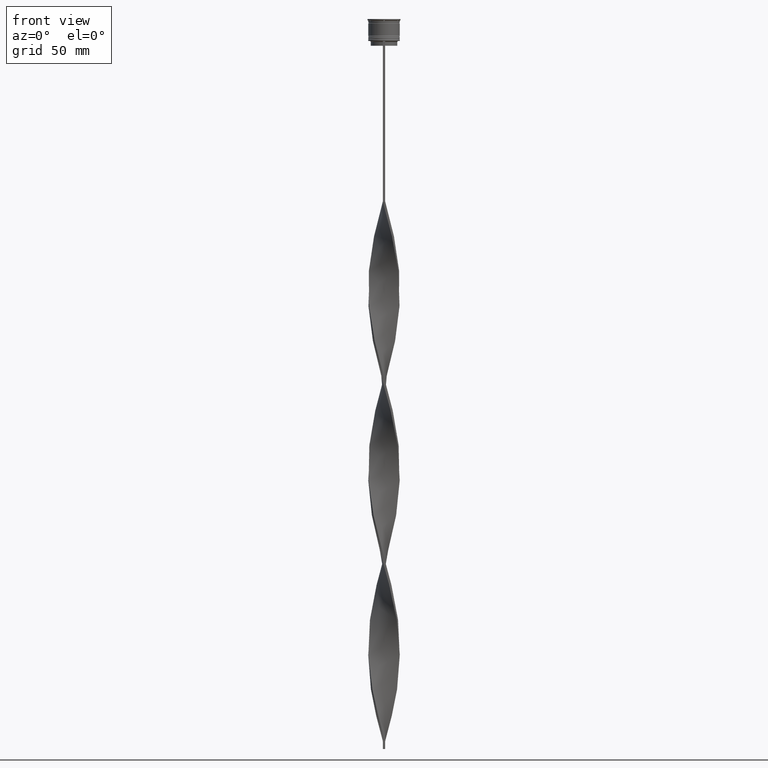
[diagram: clean part render]
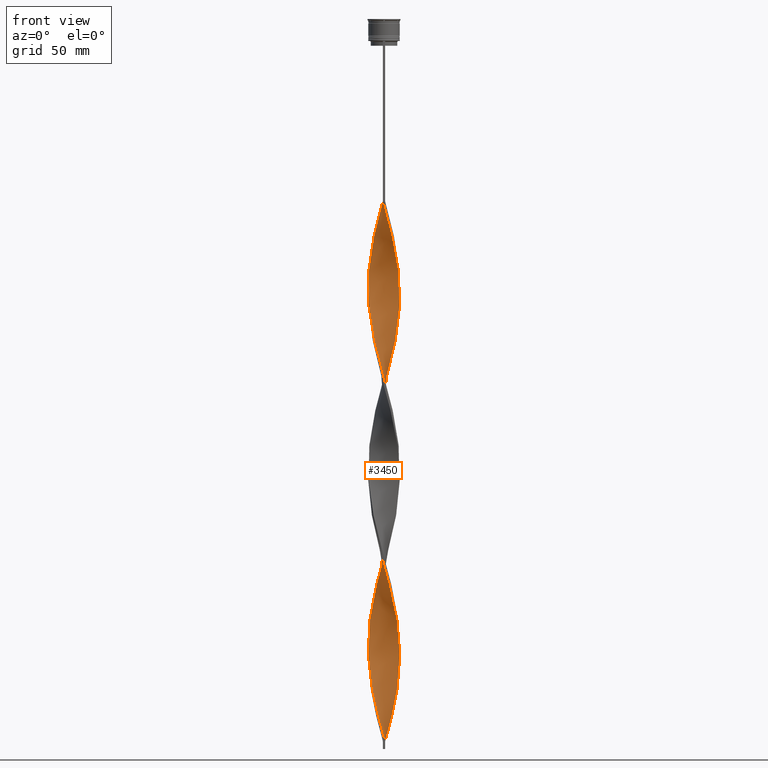
[diagram: same view with one face highlighted and labeled with its STEP entity id]
A machine part, front view. The second image highlights one B-rep face of the part: STEP entity #3450.
In plain terms, the highlighted face is a freeform B-spline surface patch.
Its self-contained STEP definition (entity closure, byte-faithful):
#8 = CARTESIAN_POINT ( 'NONE',  ( 0.7499999999999985567, -9.999999999999998224, -230.3333333333333428 ) ) ;
#14 = CARTESIAN_POINT ( 'NONE',  ( 7.620814860596667906, 6.557445345164573780, -430.4166666666666856 ) ) ;
#27 = CARTESIAN_POINT ( 'NONE',  ( 10.05364105866910052, -0.03478588441203001036, -175.7651515151515014 ) ) ;
#28 = CARTESIAN_POINT ( 'NONE',  ( 3.536945298625166156, -9.383630318513901614, -240.7272727272727479 ) ) ;
#36 = CARTESIAN_POINT ( 'NONE',  ( -9.407881213296606759, -3.471926133502973411, -303.0909090909091219 ) ) ;
#51 = CARTESIAN_POINT ( 'NONE',  ( -7.575255041002665557, -6.610024179840425340, -196.5530303030303116 ) ) ;
#59 = CARTESIAN_POINT ( 'NONE',  ( -2.165514464143553308, -9.791478290104366877, -339.4696969696969973 ) ) ;
#72 = CARTESIAN_POINT ( 'NONE',  ( -9.999999999999998224, -0.7499999999999991118, -173.1666666666666856 ) ) ;
#76 = CARTESIAN_POINT ( 'NONE',  ( -0.6807823013221521169, -10.00495054751428725, -225.1363636363636260 ) ) ;
#87 = CARTESIAN_POINT ( 'NONE',  ( -9.130662998149981391, 4.208075784551214227, -274.5075757575757507 ) ) ;
#97 = CARTESIAN_POINT ( 'NONE',  ( 1.465214115587968324, -9.946358941330901260, -232.9318181818181870 ) ) ;
#99 = CARTESIAN_POINT ( 'NONE',  ( 0.7500000000000009992, 10.00000000000000533, -459.0000000000000000 ) ) ;
#115 = CARTESIAN_POINT ( 'NONE',  ( 0.03478588441202859483, -10.05364105866909341, -227.7348484848484702 ) ) ;
#122 = CARTESIAN_POINT ( 'NONE',  ( 0.6807823013221536712, 10.00495054751428903, -339.4696969696969973 ) ) ;
#127 = CARTESIAN_POINT ( 'NONE',  ( 4.836374126534754403, 8.784758693793774498, -214.7424242424242209 ) ) ;
#129 = CARTESIAN_POINT ( 'NONE',  ( 0.7500000000000011102, 10.00000000000000533, -459.0000000000000000 ) ) ;
#139 = CARTESIAN_POINT ( 'NONE',  ( -5.464672468518295467, 8.438854389437556947, -134.1893939393939377 ) ) ;
#143 = CARTESIAN_POINT ( 'NONE',  ( 9.130662998149976062, 4.208075784551208898, -300.4924242424241925 ) ) ;
#147 = CARTESIAN_POINT ( 'NONE',  ( 10.00495054751429613, 0.6807823013221513397, -178.3636363636364024 ) ) ;
#149 = CARTESIAN_POINT ( 'NONE',  ( 0.7500000000000011102, 10.00000000000000533, -459.0000000000000000 ) ) ;
#155 = CARTESIAN_POINT ( 'NONE',  ( -7.620814860596662577, 6.557445345164569339, -373.2499999999999432 ) ) ;
#157 = CARTESIAN_POINT ( 'NONE',  ( 7.115419520218543070, -7.066350193083619224, -256.3181818181818130 ) ) ;
#162 = CARTESIAN_POINT ( 'NONE',  ( -8.007054715220117913, 6.037348324179363068, -266.7121212121212466 ) ) ;
#171 = CARTESIAN_POINT ( 'NONE',  ( -8.007054715220110808, -6.037348324179360404, -422.6212121212121247 ) ) ;
#174 = CARTESIAN_POINT ( 'NONE',  ( -9.383630318513899837, -3.536945298625169265, -412.2272727272727479 ) ) ;
#180 = CARTESIAN_POINT ( 'NONE',  ( 8.476467727406435060, 5.406144972209746768, -196.5530303030303116 ) ) ;
#196 = CARTESIAN_POINT ( 'NONE',  ( -2.799061189350513512, -9.656198271192605986, -446.0075757575756938 ) ) ;
#199 = CARTESIAN_POINT ( 'NONE',  ( 8.048641294001544821, -5.981795158687156722, -261.5151515151515582 ) ) ;
#206 = CARTESIAN_POINT ( 'NONE',  ( 10.00000000000000533, -0.7500000000000004441, -173.1666666666666856 ) ) ;
#219 = CARTESIAN_POINT ( 'NONE',  ( -4.775468024932591149, -8.818015941403507085, -438.2121212121212466 ) ) ;
#223 = CARTESIAN_POINT ( 'NONE',  ( 7.575255041002672662, -6.610024179840428893, -378.4469696969697452 ) ) ;
#237 = CARTESIAN_POINT ( 'NONE',  ( 0.6807823013221536712, 10.00495054751428903, -339.4696969696969973 ) ) ;
#243 = CARTESIAN_POINT ( 'NONE',  ( -0.7499999999999997780, -10.00000000000000533, -344.6666666666666856 ) ) ;
#246 =( BOUNDED_CURVE ( )  B_SPLINE_CURVE ( 2, ( #1320, #2683, #2146, #2774, #2183, #790, #2484, #139, #3222, #4194, #1169, #4217, #1455, #4237, #3857, #1124, #4150, #766, #3199, #2123, #3904, #3832, #72, #2100, #831, #3520, #1434, #2526, #464, #3163, #1493, #1829, #3494, #445, #1807, #2838, #3564, #488, #2162, #1085, #1473, #3180, #1409, #115, #1148, #97, #2506, #3885, #2861, #2440, #1762, #1849, #810, #3814, #744, #3467, #398, #424, #3540, #1787, #3140, #2816, #2796, #4174, #1104, #2461, #851, #597, #1245, #576, #2965, #3288, #3965, #871, #1228, #2225, #2587, #1951, #2924, #1269, #3652, #1933, #4295, #3605, #2550, #3308, #237, #1209, #1574, #1866, #2607, #1187, #1593, #893, #1513, #938, #2246, #3627, #4342, #155, #551, #2631, #4011, #2296, #1911, #3926, #1884, #2880, #3990, #4273, #2572, #2205, #508, #525, #3672, #3586, #3242, #4253, #171, #915, #3947, #1532, #2901, #3265, #219, #2942, #4315, #196, #1556, #2273, #260, #3400, #2055 ),
 .UNSPECIFIED., .F., .T. ) 
 B_SPLINE_CURVE_WITH_KNOTS ( ( 3, 2, 2, 2, 2, 2, 2, 2, 2, 2, 2, 2, 2, 2, 2, 2, 2, 2, 2, 2, 2, 2, 2, 2, 2, 2, 2, 2, 2, 2, 2, 2, 2, 2, 2, 2, 2, 2, 2, 2, 2, 2, 2, 2, 2, 2, 2, 2, 2, 2, 2, 2, 2, 2, 2, 2, 2, 2, 2, 2, 2, 2, 2, 2, 2, 2, 3 ),
 ( 0.000000000000000000, 0.01136363636363636222, 0.02272727272727272443, 0.03409090909090908839, 0.04545454545454544887, 0.05681818181818181629, 0.06818181818181817677, 0.07954545454545454419, 0.09090909090909089774, 0.1022727272727272790, 0.1136363636363636326, 0.1250000000000000000, 0.1363636363636363535, 0.1477272727272727348, 0.1590909090909090884, 0.1704545454545454419, 0.1818181818181817955, 0.1931818181818182045, 0.2045454545454545581, 0.2159090909090909116, 0.2272727272727272652, 0.2386363636363636465, 0.2500000000000000000, 0.2613636363636363535, 0.2727272727272727071, 0.2840909090909091161, 0.2954545454545454697, 0.3068181818181818232, 0.3181818181818181768, 0.3295454545454545303, 0.3409090909090908839, 0.3522727272727272929, 0.3636363636363635909, 0.3750000000000000000, 0.3863636363636364091, 0.3977272727272727071, 0.4090909090909091161, 0.4204545454545454697, 0.4318181818181818232, 0.4431818181818181768, 0.4545454545454545303, 0.4659090909090908839, 0.4772727272727272929, 0.4886363636363635909, 0.5000000000000000000, 0.5113636363636363535, 0.5227272727272727071, 0.5340909090909090606, 0.5454545454545454142, 0.5568181818181817677, 0.5681818181818182323, 0.5795454545454545858, 0.5909090909090909394, 0.6022727272727272929, 0.6136363636363636465, 0.6250000000000000000, 0.6363636363636363535, 0.6477272727272727071, 0.6590909090909090606, 0.6704545454545454142, 0.6818181818181817677, 0.6931818181818182323, 0.7045454545454545858, 0.7159090909090909394, 0.7272727272727271819, 0.7386363636363636465, 0.7500000000000000000 ),
 .UNSPECIFIED. ) 
 CURVE ( )  GEOMETRIC_REPRESENTATION_ITEM ( )  RATIONAL_B_SPLINE_CURVE ( ( 1.000000000000000000, 0.9974521146102535152, 1.000000000000000000, 0.9974521146102535152, 1.000000000000000000, 0.9974521146102535152, 1.000000000000000000, 0.9974521146102535152, 1.000000000000000000, 0.9974521146102535152, 1.000000000000000000, 0.9974521146102535152, 1.000000000000000000, 0.9974521146102535152, 1.000000000000000000, 0.9974521146102535152, 1.000000000000000000, 0.9974521146102535152, 1.000000000000000000, 0.9974521146102535152, 1.000000000000000000, 0.9974521146102535152, 1.000000000000000000, 0.9974521146102535152, 1.000000000000000000, 0.9974521146102535152, 1.000000000000000000, 0.9974521146102535152, 1.000000000000000000, 0.9974521146102535152, 1.000000000000000000, 0.9974521146102535152, 1.000000000000000000, 0.9974521146102535152, 1.000000000000000000, 0.9974521146102535152, 1.000000000000000000, 0.9974521146102535152, 1.000000000000000000, 0.9974521146102535152, 1.000000000000000000, 0.9974521146102535152, 1.000000000000000000, 0.9974521146102535152, 1.000000000000000000, 0.9974521146102535152, 1.000000000000000000, 0.9974521146102535152, 1.000000000000000000, 0.9974521146102535152, 1.000000000000000000, 0.9974521146102535152, 1.000000000000000000, 0.9974521146102535152, 1.000000000000000000, 0.9974521146102535152, 1.000000000000000000, 0.9974521146102535152, 1.000000000000000000, 0.9974521146102535152, 1.000000000000000000, 0.9974521146102535152, 1.000000000000000000, 0.9974521146102535152, 1.000000000000000000, 0.9974521146102535152, 1.000000000000000000, 0.9974521146102535152, 1.000000000000000000, 0.9974521146102535152, 1.000000000000000000, 0.9974521146102535152, 1.000000000000000000, 0.9974521146102535152, 1.000000000000000000, 0.9974521146102535152, 1.000000000000000000, 0.9974521146102535152, 1.000000000000000000, 0.9974521146102535152, 1.000000000000000000, 0.9974521146102535152, 1.000000000000000000, 0.9974521146102535152, 1.000000000000000000, 0.9974521146102535152, 1.000000000000000000, 0.9974521146102535152, 1.000000000000000000, 0.9974521146102535152, 1.000000000000000000, 0.9974521146102535152, 1.000000000000000000, 0.9974521146102535152, 1.000000000000000000, 0.9974521146102535152, 1.000000000000000000, 0.9974521146102535152, 1.000000000000000000, 0.9974521146102535152, 1.000000000000000000, 0.9974521146102535152, 1.000000000000000000, 0.9974521146102535152, 1.000000000000000000, 0.9974521146102535152, 1.000000000000000000, 0.9974521146102535152, 1.000000000000000000, 0.9974521146102535152, 1.000000000000000000, 0.9974521146102535152, 1.000000000000000000, 0.9974521146102535152, 1.000000000000000000, 0.9974521146102535152, 1.000000000000000000, 0.9974521146102535152, 1.000000000000000000, 0.9974521146102535152, 1.000000000000000000, 0.9974521146102535152, 1.000000000000000000, 0.9974521146102535152, 1.000000000000000000, 0.9974521146102535152, 1.000000000000000000, 0.9974521146102535152, 1.000000000000000000, 0.9974521146102535152, 1.000000000000000000, 0.9974521146102535152, 1.000000000000000000 ) ) 
 REPRESENTATION_ITEM ( '' )  );
#250 = VECTOR ( 'NONE', #555, 1000.000000000000000 ) ;
#260 = CARTESIAN_POINT ( 'NONE',  ( -0.6807823013221521169, -10.00495054751428725, -453.8030303030303116 ) ) ;
#268 = CARTESIAN_POINT ( 'NONE',  ( -8.784758693793774498, 4.836374126534755291, -271.9090909090909349 ) ) ;
#291 = CARTESIAN_POINT ( 'NONE',  ( -9.383630318513906943, 3.536945298625171930, -277.1060606060606233 ) ) ;
#309 = CARTESIAN_POINT ( 'NONE',  ( -9.791478290104366877, 2.165514464143551976, -282.3030303030303116 ) ) ;
#317 = CARTESIAN_POINT ( 'NONE',  ( 9.383630318513906943, -3.536945298625172374, -391.4393939393939945 ) ) ;
#332 = CARTESIAN_POINT ( 'NONE',  ( -9.791478290104363325, -2.165514464143549311, -178.3636363636364024 ) ) ;
#341 = CARTESIAN_POINT ( 'NONE',  ( 9.806229153776049756, 2.097705838203425266, -412.2272727272727479 ) ) ;
#350 = CARTESIAN_POINT ( 'NONE',  ( 5.981795158687160274, -8.048641294001550150, -141.9848484848484986 ) ) ;
#357 = CARTESIAN_POINT ( 'NONE',  ( -9.407881213296597878, 3.471926133502974743, -157.5757575757575921 ) ) ;
#366 = CARTESIAN_POINT ( 'NONE',  ( 5.981795158687160274, -8.048641294001550150, -370.6515151515151842 ) ) ;
#379 = CARTESIAN_POINT ( 'NONE',  ( -3.536945298625169265, 9.383630318513899837, -126.3939393939393909 ) ) ;
#387 = CARTESIAN_POINT ( 'NONE',  ( -9.956260036359488197, -1.396350487056335687, -295.2954545454545041 ) ) ;
#398 = CARTESIAN_POINT ( 'NONE',  ( 8.048641294001544821, -5.981795158687156722, -261.5151515151515582 ) ) ;
#401 = CARTESIAN_POINT ( 'NONE',  ( -7.066350193083618336, -7.115419520218543070, -199.1515151515151558 ) ) ;
#410 = CARTESIAN_POINT ( 'NONE',  ( 8.438854389437562276, -5.464672468518299908, -383.6439393939393767 ) ) ;
#424 = CARTESIAN_POINT ( 'NONE',  ( 8.476467727406427954, -5.406144972209744104, -264.1136363636363171 ) ) ;
#428 = CARTESIAN_POINT ( 'NONE',  ( -9.130662998149976062, -4.208075784551208010, -186.1590909090908781 ) ) ;
#442 = CARTESIAN_POINT ( 'NONE',  ( 8.438854389437562276, -5.464672468518299908, -154.9772727272727195 ) ) ;
#445 = CARTESIAN_POINT ( 'NONE',  ( -6.557445345164569339, -7.620814860596661688, -201.7499999999999716 ) ) ;
#449 = CARTESIAN_POINT ( 'NONE',  ( -5.464672468518295467, 8.438854389437556947, -362.8560606060606233 ) ) ;
#464 = CARTESIAN_POINT ( 'NONE',  ( -8.784758693793767392, -4.836374126534751738, -188.7575757575757507 ) ) ;
#471 = CARTESIAN_POINT ( 'NONE',  ( -9.407881213296597878, 3.471926133502974743, -386.2424242424242493 ) ) ;
#478 = CARTESIAN_POINT ( 'NONE',  ( 5.406144972209745880, -8.476467727406435060, -139.3863636363635976 ) ) ;
#488 = CARTESIAN_POINT ( 'NONE',  ( -4.144791077655437306, -9.159564155400586216, -212.1439393939393767 ) ) ;
#494 = CARTESIAN_POINT ( 'NONE',  ( 8.818015941403510638, -4.775468024932587596, -266.7121212121212466 ) ) ;
#497 = CARTESIAN_POINT ( 'NONE',  ( -5.981795158687159386, 8.048641294001550150, -256.3181818181818130 ) ) ;
#505 = CARTESIAN_POINT ( 'NONE',  ( -9.791478290104366877, 2.165514464143552420, -282.3030303030303116 ) ) ;
#508 = CARTESIAN_POINT ( 'NONE',  ( -9.791478290104363325, -2.165514464143549311, -407.0303030303030027 ) ) ;
#510 = CARTESIAN_POINT ( 'NONE',  ( -9.999999999999998224, -0.7499999999999991118, -401.8333333333333144 ) ) ;
#514 = CARTESIAN_POINT ( 'NONE',  ( 8.007054715220117913, -6.037348324179365733, -152.3787878787879038 ) ) ;
#522 = CARTESIAN_POINT ( 'NONE',  ( -2.097705838203422601, 9.806229153776051533, -240.7272727272727479 ) ) ;
#525 = CARTESIAN_POINT ( 'NONE',  ( -9.636597638877821836, -2.865814812699130520, -409.6287878787878185 ) ) ;
#529 = CARTESIAN_POINT ( 'NONE',  ( 8.007054715220116137, 6.037348324179355963, -308.2878787878788103 ) ) ;
#532 =( BOUNDED_SURFACE ( )  B_SPLINE_SURFACE ( 1, 2, ( 
 ( #3913, #4259, #3632, #1518, #4301, #3611, #1481, #1561, #858, #478, #1893, #3936, #901, #560, #514, #2868, #1540, #1234, #3229, #3971, #879, #2534, #206, #2851, #147, #3249, #2930, #3270, #2255, #3893, #2887, #180, #2212, #2908, #3188, #4242, #838, #1838, #127, #4228, #2190, #2556, #1158, #2515, #819, #2594, #2170, #3573, #4282, #3211, #1218, #3550, #1501, #3591, #497, #1855, #2576, #3955, #162, #3749, #268, #1673, #291, #1959, #309, #3002, #1632, #3294, #1277, #3727, #2637, #4421, #1301, #4348, #579, #2615, #1347, #4375, #1938, #3047, #998, #3676, #653, #4017, #3315, #3995, #2712, #2659, #243, #4090, #2354, #605, #2011, #3385, #947, #970, #4039, #3366, #1022, #2374, #2687, #223, #1987, #1920, #3339, #2327, #1580, #2948, #3701, #631, #4323, #1253, #2303, #1652, #3024, #923, #4397, #2280, #1323, #4063, #3658, #1604, #2975, #4155, #1389, #3144, #2734, #3451, #1044, #1367, #748, #3816, #99 ),
 ( #1743, #2754, #3117, #1129, #379, #1792, #4177, #3407, #3501, #2779, #2397, #1107, #1413, #2818, #2487, #2444, #357, #3471, #3166, #728, #1458, #2799, #3093, #2127, #332, #2062, #2103, #428, #2467, #4200, #4110, #51, #401, #1087, #1766, #675, #1721, #4132, #3773, #2036, #1700, #1068, #76, #3073, #8, #702, #3838, #772, #28, #1436, #3429, #2422, #3798, #2083, #157, #793, #199, #3224, #494, #2573, #1231, #2185, #3606, #2209, #3908, #2226, #1850, #3568, #2148, #3205, #1214, #143, #1889, #1515, #529, #835, #1559, #1536, #1834, #874, #3525, #815, #2552, #3266, #2902, #2926, #122, #2884, #3930, #4256, #3587, #4299, #3545, #1497, #1152, #449, #1811, #2864, #1191, #3183, #1477, #2844, #3949, #3863, #471, #855, #2510, #1868, #4222, #3889, #510, #2165, #4240, #3245, #174, #1173, #2531, #4277, #2350, #966, #2633, #991, #3673, #941, #3966, #1935, #4394, #3311, #649, #1956, #577, #1247, #3291 ) ),
 .UNSPECIFIED., .F., .F., .F. ) 
 B_SPLINE_SURFACE_WITH_KNOTS ( ( 2, 2 ),
 ( 3, 2, 2, 2, 2, 2, 2, 2, 2, 2, 2, 2, 2, 2, 2, 2, 2, 2, 2, 2, 2, 2, 2, 2, 2, 2, 2, 2, 2, 2, 2, 2, 2, 2, 2, 2, 2, 2, 2, 2, 2, 2, 2, 2, 2, 2, 2, 2, 2, 2, 2, 2, 2, 2, 2, 2, 2, 2, 2, 2, 2, 2, 2, 2, 2, 2, 3 ),
 ( 0.000000000000000000, 1.000000000000000000 ),
 ( 0.000000000000000000, 0.01136363636363636395, 0.02272727272727272790, 0.03409090909090908839, 0.04545454545454545581, 0.05681818181818181629, 0.06818181818181817677, 0.07954545454545454419, 0.09090909090909091161, 0.1022727272727272790, 0.1136363636363636326, 0.1250000000000000000, 0.1363636363636363535, 0.1477272727272727348, 0.1590909090909090884, 0.1704545454545454419, 0.1818181818181818232, 0.1931818181818181768, 0.2045454545454545581, 0.2159090909090909116, 0.2272727272727272652, 0.2386363636363636465, 0.2500000000000000000, 0.2613636363636363535, 0.2727272727272727071, 0.2840909090909091161, 0.2954545454545454697, 0.3068181818181818232, 0.3181818181818181768, 0.3295454545454545303, 0.3409090909090908839, 0.3522727272727272929, 0.3636363636363636465, 0.3750000000000000000, 0.3863636363636363535, 0.3977272727272727071, 0.4090909090909091161, 0.4204545454545454697, 0.4318181818181818232, 0.4431818181818181768, 0.4545454545454545303, 0.4659090909090908839, 0.4772727272727272929, 0.4886363636363636465, 0.5000000000000000000, 0.5113636363636363535, 0.5227272727272727071, 0.5340909090909090606, 0.5454545454545454142, 0.5568181818181817677, 0.5681818181818182323, 0.5795454545454545858, 0.5909090909090909394, 0.6022727272727272929, 0.6136363636363636465, 0.6250000000000000000, 0.6363636363636363535, 0.6477272727272727071, 0.6590909090909090606, 0.6704545454545454142, 0.6818181818181817677, 0.6931818181818182323, 0.7045454545454545858, 0.7159090909090909394, 0.7272727272727272929, 0.7386363636363636465, 0.7500000000000000000 ),
 .UNSPECIFIED. ) 
 GEOMETRIC_REPRESENTATION_ITEM ( )  RATIONAL_B_SPLINE_SURFACE ( (
 ( 1.000000000000000000, 0.9974521146102535152, 1.000000000000000000, 0.9974521146102535152, 1.000000000000000000, 0.9974521146102535152, 1.000000000000000000, 0.9974521146102535152, 1.000000000000000000, 0.9974521146102535152, 1.000000000000000000, 0.9974521146102535152, 1.000000000000000000, 0.9974521146102535152, 1.000000000000000000, 0.9974521146102535152, 1.000000000000000000, 0.9974521146102535152, 1.000000000000000000, 0.9974521146102535152, 1.000000000000000000, 0.9974521146102535152, 1.000000000000000000, 0.9974521146102535152, 1.000000000000000000, 0.9974521146102535152, 1.000000000000000000, 0.9974521146102535152, 1.000000000000000000, 0.9974521146102535152, 1.000000000000000000, 0.9974521146102535152, 1.000000000000000000, 0.9974521146102535152, 1.000000000000000000, 0.9974521146102535152, 1.000000000000000000, 0.9974521146102535152, 1.000000000000000000, 0.9974521146102535152, 1.000000000000000000, 0.9974521146102535152, 1.000000000000000000, 0.9974521146102535152, 1.000000000000000000, 0.9974521146102535152, 1.000000000000000000, 0.9974521146102535152, 1.000000000000000000, 0.9974521146102535152, 1.000000000000000000, 0.9974521146102535152, 1.000000000000000000, 0.9974521146102535152, 1.000000000000000000, 0.9974521146102535152, 1.000000000000000000, 0.9974521146102535152, 1.000000000000000000, 0.9974521146102535152, 1.000000000000000000, 0.9974521146102535152, 1.000000000000000000, 0.9974521146102535152, 1.000000000000000000, 0.9974521146102535152, 1.000000000000000000, 0.9974521146102535152, 1.000000000000000000, 0.9974521146102535152, 1.000000000000000000, 0.9974521146102535152, 1.000000000000000000, 0.9974521146102535152, 1.000000000000000000, 0.9974521146102535152, 1.000000000000000000, 0.9974521146102535152, 1.000000000000000000, 0.9974521146102535152, 1.000000000000000000, 0.9974521146102535152, 1.000000000000000000, 0.9974521146102535152, 1.000000000000000000, 0.9974521146102535152, 1.000000000000000000, 0.9974521146102535152, 1.000000000000000000, 0.9974521146102535152, 1.000000000000000000, 0.9974521146102535152, 1.000000000000000000, 0.9974521146102535152, 1.000000000000000000, 0.9974521146102535152, 1.000000000000000000, 0.9974521146102535152, 1.000000000000000000, 0.9974521146102535152, 1.000000000000000000, 0.9974521146102535152, 1.000000000000000000, 0.9974521146102535152, 1.000000000000000000, 0.9974521146102535152, 1.000000000000000000, 0.9974521146102535152, 1.000000000000000000, 0.9974521146102535152, 1.000000000000000000, 0.9974521146102535152, 1.000000000000000000, 0.9974521146102535152, 1.000000000000000000, 0.9974521146102535152, 1.000000000000000000, 0.9974521146102535152, 1.000000000000000000, 0.9974521146102535152, 1.000000000000000000, 0.9974521146102535152, 1.000000000000000000, 0.9974521146102535152, 1.000000000000000000, 0.9974521146102535152, 1.000000000000000000, 0.9974521146102535152, 1.000000000000000000, 0.9974521146102535152, 1.000000000000000000, 0.9974521146102535152, 1.000000000000000000),
 ( 1.000000000000000000, 0.9974521146102535152, 1.000000000000000000, 0.9974521146102535152, 1.000000000000000000, 0.9974521146102535152, 1.000000000000000000, 0.9974521146102535152, 1.000000000000000000, 0.9974521146102535152, 1.000000000000000000, 0.9974521146102535152, 1.000000000000000000, 0.9974521146102535152, 1.000000000000000000, 0.9974521146102535152, 1.000000000000000000, 0.9974521146102535152, 1.000000000000000000, 0.9974521146102535152, 1.000000000000000000, 0.9974521146102535152, 1.000000000000000000, 0.9974521146102535152, 1.000000000000000000, 0.9974521146102535152, 1.000000000000000000, 0.9974521146102535152, 1.000000000000000000, 0.9974521146102535152, 1.000000000000000000, 0.9974521146102535152, 1.000000000000000000, 0.9974521146102535152, 1.000000000000000000, 0.9974521146102535152, 1.000000000000000000, 0.9974521146102535152, 1.000000000000000000, 0.9974521146102535152, 1.000000000000000000, 0.9974521146102535152, 1.000000000000000000, 0.9974521146102535152, 1.000000000000000000, 0.9974521146102535152, 1.000000000000000000, 0.9974521146102535152, 1.000000000000000000, 0.9974521146102535152, 1.000000000000000000, 0.9974521146102535152, 1.000000000000000000, 0.9974521146102535152, 1.000000000000000000, 0.9974521146102535152, 1.000000000000000000, 0.9974521146102535152, 1.000000000000000000, 0.9974521146102535152, 1.000000000000000000, 0.9974521146102535152, 1.000000000000000000, 0.9974521146102535152, 1.000000000000000000, 0.9974521146102535152, 1.000000000000000000, 0.9974521146102535152, 1.000000000000000000, 0.9974521146102535152, 1.000000000000000000, 0.9974521146102535152, 1.000000000000000000, 0.9974521146102535152, 1.000000000000000000, 0.9974521146102535152, 1.000000000000000000, 0.9974521146102535152, 1.000000000000000000, 0.9974521146102535152, 1.000000000000000000, 0.9974521146102535152, 1.000000000000000000, 0.9974521146102535152, 1.000000000000000000, 0.9974521146102535152, 1.000000000000000000, 0.9974521146102535152, 1.000000000000000000, 0.9974521146102535152, 1.000000000000000000, 0.9974521146102535152, 1.000000000000000000, 0.9974521146102535152, 1.000000000000000000, 0.9974521146102535152, 1.000000000000000000, 0.9974521146102535152, 1.000000000000000000, 0.9974521146102535152, 1.000000000000000000, 0.9974521146102535152, 1.000000000000000000, 0.9974521146102535152, 1.000000000000000000, 0.9974521146102535152, 1.000000000000000000, 0.9974521146102535152, 1.000000000000000000, 0.9974521146102535152, 1.000000000000000000, 0.9974521146102535152, 1.000000000000000000, 0.9974521146102535152, 1.000000000000000000, 0.9974521146102535152, 1.000000000000000000, 0.9974521146102535152, 1.000000000000000000, 0.9974521146102535152, 1.000000000000000000, 0.9974521146102535152, 1.000000000000000000, 0.9974521146102535152, 1.000000000000000000, 0.9974521146102535152, 1.000000000000000000, 0.9974521146102535152, 1.000000000000000000, 0.9974521146102535152, 1.000000000000000000, 0.9974521146102535152, 1.000000000000000000) ) ) 
 REPRESENTATION_ITEM ( '' )  SURFACE ( )  );
#551 = CARTESIAN_POINT ( 'NONE',  ( -8.048641294001546598, 5.981795158687156722, -375.8484848484848726 ) ) ;
#555 = DIRECTION ( 'NONE',  ( 0.000000000000000000, 1.000000000000000000, 0.000000000000000000 ) ) ;
#560 = CARTESIAN_POINT ( 'NONE',  ( 7.575255041002672662, -6.610024179840428893, -149.7803030303030596 ) ) ;
#576 = CARTESIAN_POINT ( 'NONE',  ( 9.636597638877821836, 2.865814812699131409, -295.2954545454545041 ) ) ;
#577 = CARTESIAN_POINT ( 'NONE',  ( -0.6807823013221521169, -10.00495054751428725, -453.8030303030303116 ) ) ;
#579 = CARTESIAN_POINT ( 'NONE',  ( -8.818015941403515967, -4.775468024932588484, -308.2878787878788103 ) ) ;
#597 = CARTESIAN_POINT ( 'NONE',  ( 9.946358941330901260, 1.465214115587971877, -290.0984848484848726 ) ) ;
#605 = CARTESIAN_POINT ( 'NONE',  ( 1.396350487056334799, -9.956260036359488197, -352.4621212121211329 ) ) ;
#611 = CARTESIAN_POINT ( 'NONE',  ( 9.791478290104368654, -2.165514464143551088, -167.9696969696969973 ) ) ;
#631 = CARTESIAN_POINT ( 'NONE',  ( 9.946358941330910142, -1.465214115587970545, -399.2348484848484418 ) ) ;
#649 = CARTESIAN_POINT ( 'NONE',  ( -2.097705838203423490, -9.806229153776044427, -448.6060606060606233 ) ) ;
#653 = CARTESIAN_POINT ( 'NONE',  ( -4.836374126534756179, -8.784758693793772721, -329.0757575757575637 ) ) ;
#662 = CARTESIAN_POINT ( 'NONE',  ( -4.208075784551214227, -9.130662998149981391, -331.6742424242423795 ) ) ;
#675 = CARTESIAN_POINT ( 'NONE',  ( -5.406144972209744104, -8.476467727406427954, -206.9469696969697168 ) ) ;
#682 = CARTESIAN_POINT ( 'NONE',  ( 7.575255041002671774, -6.610024179840428005, -378.4469696969697452 ) ) ;
#702 = CARTESIAN_POINT ( 'NONE',  ( 1.465214115587968324, -9.946358941330903036, -232.9318181818181870 ) ) ;
#712 = CARTESIAN_POINT ( 'NONE',  ( 5.406144972209745880, -8.476467727406435060, -368.0530303030302548 ) ) ;
#728 = CARTESIAN_POINT ( 'NONE',  ( -9.956260036359481091, 1.396350487056332357, -165.3712121212120962 ) ) ;
#736 = CARTESIAN_POINT ( 'NONE',  ( 9.946358941330908365, -1.465214115587970767, -399.2348484848484418 ) ) ;
#744 = CARTESIAN_POINT ( 'NONE',  ( 7.115419520218543070, -7.066350193083619224, -256.3181818181818130 ) ) ;
#748 = CARTESIAN_POINT ( 'NONE',  ( 2.165514464143551976, 9.791478290104368654, -453.8030303030303116 ) ) ;
#755 = CARTESIAN_POINT ( 'NONE',  ( 6.557445345164574668, -7.620814860596667906, -373.2499999999999432 ) ) ;
#766 = CARTESIAN_POINT ( 'NONE',  ( -9.656198271192604210, 2.799061189350515289, -160.1742424242424363 ) ) ;
#772 = CARTESIAN_POINT ( 'NONE',  ( 2.865814812699127856, -9.636597638877821836, -238.1287878787878469 ) ) ;
#790 = CARTESIAN_POINT ( 'NONE',  ( -4.208075784551208010, 9.130662998149976062, -128.9924242424242209 ) ) ;
#793 = CARTESIAN_POINT ( 'NONE',  ( 7.620814860596662577, -6.557445345164570227, -258.9166666666666288 ) ) ;
#810 = CARTESIAN_POINT ( 'NONE',  ( 6.037348324179360404, -8.007054715220112584, -251.1212121212121247 ) ) ;
#815 = CARTESIAN_POINT ( 'NONE',  ( 4.144791077655439970, 9.159564155400586216, -326.4772727272727479 ) ) ;
#819 = CARTESIAN_POINT ( 'NONE',  ( 0.7500000000000009992, 10.00000000000000533, -230.3333333333333428 ) ) ;
#831 = CARTESIAN_POINT ( 'NONE',  ( -9.791478290104363325, -2.165514464143549311, -178.3636363636364024 ) ) ;
#833 = CARTESIAN_POINT ( 'NONE',  ( 5.406144972209745880, -8.476467727406435060, -139.3863636363636260 ) ) ;
#835 = CARTESIAN_POINT ( 'NONE',  ( 7.575255041002667333, 6.610024179840423564, -310.8863636363635692 ) ) ;
#838 = CARTESIAN_POINT ( 'NONE',  ( 6.037348324179366621, 8.007054715220117913, -209.5454545454545610 ) ) ;
#851 = CARTESIAN_POINT ( 'NONE',  ( 9.999999999999998224, 0.7499999999999980016, -287.5000000000000568 ) ) ;
#852 = VERTEX_POINT ( 'NONE', #2195 ) ;
#855 = CARTESIAN_POINT ( 'NONE',  ( -9.656198271192604210, 2.799061189350515289, -388.8409090909090651 ) ) ;
#858 = CARTESIAN_POINT ( 'NONE',  ( 4.775468024932592925, -8.818015941403515967, -136.7878787878787818 ) ) ;
#871 = CARTESIAN_POINT ( 'NONE',  ( 8.438854389437556947, 5.464672468518295467, -305.6893939393939945 ) ) ;
#872 = CARTESIAN_POINT ( 'NONE',  ( 9.806229153776049756, 2.097705838203425266, -183.5606060606060908 ) ) ;
#874 = CARTESIAN_POINT ( 'NONE',  ( 5.406144972209744992, 8.476467727406426178, -321.2803030303030596 ) ) ;
#879 = CARTESIAN_POINT ( 'NONE',  ( 9.791478290104368654, -2.165514464143551088, -167.9696969696969973 ) ) ;
#893 = CARTESIAN_POINT ( 'NONE',  ( -4.208075784551208010, 9.130662998149976062, -357.6590909090909349 ) ) ;
#901 = CARTESIAN_POINT ( 'NONE',  ( 7.066350193083622777, -7.115419520218548399, -147.1818181818181870 ) ) ;
#915 = CARTESIAN_POINT ( 'NONE',  ( -7.575255041002665557, -6.610024179840424452, -425.2196969696969404 ) ) ;
#923 = CARTESIAN_POINT ( 'NONE',  ( 9.656198271192611315, 2.799061189350516621, -414.8257575757575637 ) ) ;
#938 = CARTESIAN_POINT ( 'NONE',  ( -5.464672468518295467, 8.438854389437556947, -362.8560606060606233 ) ) ;
#941 = CARTESIAN_POINT ( 'NONE',  ( -5.406144972209744104, -8.476467727406427954, -435.6136363636363171 ) ) ;
#947 = CARTESIAN_POINT ( 'NONE',  ( 3.471926133502977407, -9.407881213296604983, -360.2575757575757507 ) ) ;
#966 = CARTESIAN_POINT ( 'NONE',  ( -7.575255041002665557, -6.610024179840425340, -425.2196969696969404 ) ) ;
#968 = CARTESIAN_POINT ( 'NONE',  ( -4.775468024932592925, 8.818015941403515967, -251.1212121212121247 ) ) ;
#970 = CARTESIAN_POINT ( 'NONE',  ( 4.144791077655439082, -9.159564155400593322, -362.8560606060606233 ) ) ;
#991 = CARTESIAN_POINT ( 'NONE',  ( -6.557445345164569339, -7.620814860596662577, -430.4166666666666856 ) ) ;
#998 = CARTESIAN_POINT ( 'NONE',  ( -6.037348324179363068, -8.007054715220117913, -323.8787878787878753 ) ) ;
#1007 = CARTESIAN_POINT ( 'NONE',  ( 8.476467727406435060, 5.406144972209746768, -425.2196969696969404 ) ) ;
#1022 = CARTESIAN_POINT ( 'NONE',  ( 5.981795158687160274, -8.048641294001550150, -370.6515151515151842 ) ) ;
#1028 = CARTESIAN_POINT ( 'NONE',  ( 10.00000000000000533, -0.7500000000000005551, -401.8333333333333144 ) ) ;
#1044 = CARTESIAN_POINT ( 'NONE',  ( 3.536945298625171041, 9.383630318513906943, -448.6060606060606233 ) ) ;
#1054 = CARTESIAN_POINT ( 'NONE',  ( 3.536945298625171041, 9.383630318513906943, -448.6060606060606233 ) ) ;
#1068 = CARTESIAN_POINT ( 'NONE',  ( -1.396350487056332801, -9.956260036359481091, -222.5378787878787250 ) ) ;
#1077 = CARTESIAN_POINT ( 'NONE',  ( 4.208075784551209786, 9.130662998149983167, -446.0075757575756938 ) ) ;
#1085 = CARTESIAN_POINT ( 'NONE',  ( -2.799061189350513512, -9.656198271192605986, -217.3409090909090651 ) ) ;
#1087 = CARTESIAN_POINT ( 'NONE',  ( -6.557445345164569339, -7.620814860596662577, -201.7500000000000000 ) ) ;
#1095 = CARTESIAN_POINT ( 'NONE',  ( -8.476467727406435060, -5.406144972209744992, -310.8863636363635692 ) ) ;
#1104 = CARTESIAN_POINT ( 'NONE',  ( 10.00495054751428903, -0.6807823013221527830, -282.3030303030303116 ) ) ;
#1107 = CARTESIAN_POINT ( 'NONE',  ( -7.620814860596663465, 6.557445345164569339, -144.5833333333333428 ) ) ;
#1124 = CARTESIAN_POINT ( 'NONE',  ( -9.159564155400587993, 4.144791077655436418, -154.9772727272727195 ) ) ;
#1129 = CARTESIAN_POINT ( 'NONE',  ( -2.865814812699130076, 9.636597638877821836, -123.7954545454545325 ) ) ;
#1148 = CARTESIAN_POINT ( 'NONE',  ( 0.7499999999999985567, -9.999999999999998224, -230.3333333333333428 ) ) ;
#1152 = CARTESIAN_POINT ( 'NONE',  ( -4.836374126534752627, 8.784758693793767392, -360.2575757575757507 ) ) ;
#1153 = CARTESIAN_POINT ( 'NONE',  ( 1.465214115587971433, 9.946358941330908365, -227.7348484848484702 ) ) ;
#1158 = CARTESIAN_POINT ( 'NONE',  ( 2.165514464143551976, 9.791478290104368654, -225.1363636363636260 ) ) ;
#1169 = CARTESIAN_POINT ( 'NONE',  ( -7.115419520218543070, 7.066350193083617448, -141.9848484848484986 ) ) ;
#1173 = CARTESIAN_POINT ( 'NONE',  ( -9.130662998149976062, -4.208075784551208010, -414.8257575757575637 ) ) ;
#1175 =( BOUNDED_CURVE ( )  B_SPLINE_CURVE ( 2, ( #1630, #3000, #4373, #1299, #3725, #2658, #2326, #1984, #1791, #833, #350, #2509, #3887, #2004, #3198, #442, #3903, #2120, #2041, #3663, #611, #1983, #3023, #27, #2010, #3653, #872, #2159, #2202, #3582, #1509, #2877, #2222, #1243, #2169, #1837, #4215, #3884, #1375, #4164, #2478, #1505, #1522, #1153, #2266, #1968, #3642, #4333, #522, #2395, #2019, #1251, #968, #1295, #3247, #2904, #3951, #3208, #1825, #3874, #1919, #87, #2792, #1292, #505, #2724, #2463, #2719, #2070, #387, #1373, #2741, #36, #2404, #1683, #1095, #2787, #3734, #4162, #2452, #1400, #2045, #3780, #662, #2361, #2022, #59, #1422, #2382, #2764, #3057, #3806, #3394, #3824, #3438, #2695, #2112, #712, #366, #755, #3153, #682, #3481, #410, #3129, #1729, #317, #3080, #1333, #736, #1028, #3756, #4429, #1355, #341, #1776, #4097, #3414, #4074, #1007, #2431, #14, #1710, #1753, #4118, #3101, #4139, #1077, #1054, #2090, #3458, #1444, #149 ),
 .UNSPECIFIED., .F., .T. ) 
 B_SPLINE_CURVE_WITH_KNOTS ( ( 3, 2, 2, 2, 2, 2, 2, 2, 2, 2, 2, 2, 2, 2, 2, 2, 2, 2, 2, 2, 2, 2, 2, 2, 2, 2, 2, 2, 2, 2, 2, 2, 2, 2, 2, 2, 2, 2, 2, 2, 2, 2, 2, 2, 2, 2, 2, 2, 2, 2, 2, 2, 2, 2, 2, 2, 2, 2, 2, 2, 2, 2, 2, 2, 2, 2, 3 ),
 ( 0.000000000000000000, 0.01136363636363636222, 0.02272727272727272443, 0.03409090909090908839, 0.04545454545454544887, 0.05681818181818181629, 0.06818181818181817677, 0.07954545454545454419, 0.09090909090909089774, 0.1022727272727272790, 0.1136363636363636326, 0.1250000000000000000, 0.1363636363636363535, 0.1477272727272727348, 0.1590909090909090884, 0.1704545454545454419, 0.1818181818181817955, 0.1931818181818182045, 0.2045454545454545581, 0.2159090909090909116, 0.2272727272727272652, 0.2386363636363636465, 0.2500000000000000000, 0.2613636363636363535, 0.2727272727272727071, 0.2840909090909091161, 0.2954545454545454697, 0.3068181818181818232, 0.3181818181818181768, 0.3295454545454545303, 0.3409090909090908839, 0.3522727272727272929, 0.3636363636363635909, 0.3750000000000000000, 0.3863636363636364091, 0.3977272727272727071, 0.4090909090909091161, 0.4204545454545454697, 0.4318181818181818232, 0.4431818181818181768, 0.4545454545454545303, 0.4659090909090908839, 0.4772727272727272929, 0.4886363636363635909, 0.5000000000000000000, 0.5113636363636363535, 0.5227272727272727071, 0.5340909090909090606, 0.5454545454545454142, 0.5568181818181817677, 0.5681818181818182323, 0.5795454545454545858, 0.5909090909090909394, 0.6022727272727272929, 0.6136363636363636465, 0.6250000000000000000, 0.6363636363636363535, 0.6477272727272727071, 0.6590909090909090606, 0.6704545454545454142, 0.6818181818181817677, 0.6931818181818182323, 0.7045454545454545858, 0.7159090909090909394, 0.7272727272727271819, 0.7386363636363636465, 0.7500000000000000000 ),
 .UNSPECIFIED. ) 
 CURVE ( )  GEOMETRIC_REPRESENTATION_ITEM ( )  RATIONAL_B_SPLINE_CURVE ( ( 1.000000000000000000, 0.9974521146102535152, 1.000000000000000000, 0.9974521146102535152, 1.000000000000000000, 0.9974521146102535152, 1.000000000000000000, 0.9974521146102535152, 1.000000000000000000, 0.9974521146102535152, 1.000000000000000000, 0.9974521146102535152, 1.000000000000000000, 0.9974521146102535152, 1.000000000000000000, 0.9974521146102535152, 1.000000000000000000, 0.9974521146102535152, 1.000000000000000000, 0.9974521146102535152, 1.000000000000000000, 0.9974521146102535152, 1.000000000000000000, 0.9974521146102535152, 1.000000000000000000, 0.9974521146102535152, 1.000000000000000000, 0.9974521146102535152, 1.000000000000000000, 0.9974521146102535152, 1.000000000000000000, 0.9974521146102535152, 1.000000000000000000, 0.9974521146102535152, 1.000000000000000000, 0.9974521146102535152, 1.000000000000000000, 0.9974521146102535152, 1.000000000000000000, 0.9974521146102535152, 1.000000000000000000, 0.9974521146102535152, 1.000000000000000000, 0.9974521146102535152, 1.000000000000000000, 0.9974521146102535152, 1.000000000000000000, 0.9974521146102535152, 1.000000000000000000, 0.9974521146102535152, 1.000000000000000000, 0.9974521146102535152, 1.000000000000000000, 0.9974521146102535152, 1.000000000000000000, 0.9974521146102535152, 1.000000000000000000, 0.9974521146102535152, 1.000000000000000000, 0.9974521146102535152, 1.000000000000000000, 0.9974521146102535152, 1.000000000000000000, 0.9974521146102535152, 1.000000000000000000, 0.9974521146102535152, 1.000000000000000000, 0.9974521146102535152, 1.000000000000000000, 0.9974521146102535152, 1.000000000000000000, 0.9974521146102535152, 1.000000000000000000, 0.9974521146102535152, 1.000000000000000000, 0.9974521146102535152, 1.000000000000000000, 0.9974521146102535152, 1.000000000000000000, 0.9974521146102535152, 1.000000000000000000, 0.9974521146102535152, 1.000000000000000000, 0.9974521146102535152, 1.000000000000000000, 0.9974521146102535152, 1.000000000000000000, 0.9974521146102535152, 1.000000000000000000, 0.9974521146102535152, 1.000000000000000000, 0.9974521146102535152, 1.000000000000000000, 0.9974521146102535152, 1.000000000000000000, 0.9974521146102535152, 1.000000000000000000, 0.9974521146102535152, 1.000000000000000000, 0.9974521146102535152, 1.000000000000000000, 0.9974521146102535152, 1.000000000000000000, 0.9974521146102535152, 1.000000000000000000, 0.9974521146102535152, 1.000000000000000000, 0.9974521146102535152, 1.000000000000000000, 0.9974521146102535152, 1.000000000000000000, 0.9974521146102535152, 1.000000000000000000, 0.9974521146102535152, 1.000000000000000000, 0.9974521146102535152, 1.000000000000000000, 0.9974521146102535152, 1.000000000000000000, 0.9974521146102535152, 1.000000000000000000, 0.9974521146102535152, 1.000000000000000000, 0.9974521146102535152, 1.000000000000000000, 0.9974521146102535152, 1.000000000000000000, 0.9974521146102535152, 1.000000000000000000, 0.9974521146102535152, 1.000000000000000000, 0.9974521146102535152, 1.000000000000000000 ) ) 
 REPRESENTATION_ITEM ( '' )  );
#1187 = CARTESIAN_POINT ( 'NONE',  ( -2.865814812699130076, 9.636597638877821836, -352.4621212121211897 ) ) ;
#1191 = CARTESIAN_POINT ( 'NONE',  ( -7.115419520218543070, 7.066350193083617448, -370.6515151515151842 ) ) ;
#1195 = FACE_OUTER_BOUND ( 'NONE', #1475, .T. ) ;
#1209 = CARTESIAN_POINT ( 'NONE',  ( -0.03478588441203184223, 10.05364105866909341, -342.0681818181818130 ) ) ;
#1214 = CARTESIAN_POINT ( 'NONE',  ( 9.383630318513901614, 3.536945298625165712, -297.8939393939394336 ) ) ;
#1218 = CARTESIAN_POINT ( 'NONE',  ( -3.471926133502978296, 9.407881213296603207, -245.9242424242424363 ) ) ;
#1228 = CARTESIAN_POINT ( 'NONE',  ( 8.007054715220116137, 6.037348324179355963, -308.2878787878788103 ) ) ;
#1231 = CARTESIAN_POINT ( 'NONE',  ( 9.407881213296597878, -3.471926133502974743, -271.9090909090909349 ) ) ;
#1234 = CARTESIAN_POINT ( 'NONE',  ( 9.130662998149983167, -4.208075784551211562, -160.1742424242424647 ) ) ;
#1243 = CARTESIAN_POINT ( 'NONE',  ( 7.620814860596667906, 6.557445345164573780, -201.7499999999999716 ) ) ;
#1245 = CARTESIAN_POINT ( 'NONE',  ( 9.791478290104363325, 2.165514464143547535, -292.6969696969697452 ) ) ;
#1247 = CARTESIAN_POINT ( 'NONE',  ( 0.03478588441202860176, -10.05364105866909341, -456.4015151515151274 ) ) ;
#1251 = CARTESIAN_POINT ( 'NONE',  ( -4.144791077655439082, 9.159564155400593322, -248.5227272727272521 ) ) ;
#1253 = CARTESIAN_POINT ( 'NONE',  ( 10.05364105866910052, -0.03478588441202989240, -404.4318181818180733 ) ) ;
#1269 = CARTESIAN_POINT ( 'NONE',  ( 5.406144972209744992, 8.476467727406426178, -321.2803030303030027 ) ) ;
#1277 = CARTESIAN_POINT ( 'NONE',  ( -10.00495054751429613, -0.6807823013221501185, -292.6969696969697452 ) ) ;
#1292 = CARTESIAN_POINT ( 'NONE',  ( -9.636597638877828942, 2.865814812699136738, -279.7045454545454390 ) ) ;
#1295 = CARTESIAN_POINT ( 'NONE',  ( -5.406144972209745880, 8.476467727406435060, -253.7196969696969973 ) ) ;
#1299 = CARTESIAN_POINT ( 'NONE',  ( 1.396350487056334577, -9.956260036359488197, -123.7954545454545467 ) ) ;
#1301 = CARTESIAN_POINT ( 'NONE',  ( -9.407881213296606759, -3.471926133502973411, -303.0909090909091219 ) ) ;
#1320 = CARTESIAN_POINT ( 'NONE',  ( -0.7499999999999997780, 9.999999999999998224, -116.0000000000000000 ) ) ;
#1323 = CARTESIAN_POINT ( 'NONE',  ( 8.818015941403514191, 4.775468024932592925, -422.6212121212121247 ) ) ;
#1333 = CARTESIAN_POINT ( 'NONE',  ( 9.791478290104368654, -2.165514464143551088, -396.6363636363636260 ) ) ;
#1347 = CARTESIAN_POINT ( 'NONE',  ( -8.048641294001550150, -5.981795158687162051, -313.4848484848484986 ) ) ;
#1355 = CARTESIAN_POINT ( 'NONE',  ( 9.956260036359488197, 1.396350487056335021, -409.6287878787878185 ) ) ;
#1367 = CARTESIAN_POINT ( 'NONE',  ( 2.865814812699131853, 9.636597638877828942, -451.2045454545454959 ) ) ;
#1373 = CARTESIAN_POINT ( 'NONE',  ( -9.806229153776051533, -2.097705838203422157, -297.8939393939394336 ) ) ;
#1375 = CARTESIAN_POINT ( 'NONE',  ( 4.836374126534754403, 8.784758693793774498, -214.7424242424242209 ) ) ;
#1389 = CARTESIAN_POINT ( 'NONE',  ( 6.037348324179366621, 8.007054715220117913, -438.2121212121212466 ) ) ;
#1400 = CARTESIAN_POINT ( 'NONE',  ( -6.037348324179363068, -8.007054715220117913, -323.8787878787878753 ) ) ;
#1409 = CARTESIAN_POINT ( 'NONE',  ( -0.6807823013221521169, -10.00495054751428725, -225.1363636363636260 ) ) ;
#1413 = CARTESIAN_POINT ( 'NONE',  ( -8.048641294001546598, 5.981795158687156722, -147.1818181818181870 ) ) ;
#1422 = CARTESIAN_POINT ( 'NONE',  ( -1.465214115587968102, -9.946358941330908365, -342.0681818181818130 ) ) ;
#1434 = CARTESIAN_POINT ( 'NONE',  ( -9.383630318513899837, -3.536945298625169265, -183.5606060606060908 ) ) ;
#1436 = CARTESIAN_POINT ( 'NONE',  ( 4.208075784551209786, -9.130662998149976062, -243.3257575757575637 ) ) ;
#1444 = CARTESIAN_POINT ( 'NONE',  ( 1.465214115587971433, 9.946358941330908365, -456.4015151515151274 ) ) ;
#1455 = CARTESIAN_POINT ( 'NONE',  ( -8.048641294001546598, 5.981795158687156722, -147.1818181818181870 ) ) ;
#1458 = CARTESIAN_POINT ( 'NONE',  ( -10.00495054751428725, 0.6807823013221516728, -167.9696969696969973 ) ) ;
#1473 = CARTESIAN_POINT ( 'NONE',  ( -2.097705838203423490, -9.806229153776044427, -219.9393939393939377 ) ) ;
#1475 = EDGE_LOOP ( 'NONE', ( #3363, #2443, #3332, #2050 ) ) ;
#1477 = CARTESIAN_POINT ( 'NONE',  ( -8.048641294001546598, 5.981795158687156722, -375.8484848484848726 ) ) ;
#1481 = CARTESIAN_POINT ( 'NONE',  ( 3.471926133502977407, -9.407881213296604983, -131.5909090909090935 ) ) ;
#1493 = CARTESIAN_POINT ( 'NONE',  ( -8.007054715220110808, -6.037348324179360404, -193.9545454545454675 ) ) ;
#1497 = CARTESIAN_POINT ( 'NONE',  ( -4.208075784551208898, 9.130662998149976062, -357.6590909090909918 ) ) ;
#1501 = CARTESIAN_POINT ( 'NONE',  ( -4.775468024932592925, 8.818015941403515967, -251.1212121212121247 ) ) ;
#1505 = CARTESIAN_POINT ( 'NONE',  ( 2.865814812699131853, 9.636597638877828942, -222.5378787878787534 ) ) ;
#1509 = CARTESIAN_POINT ( 'NONE',  ( 8.818015941403514191, 4.775468024932592925, -193.9545454545454675 ) ) ;
#1513 = CARTESIAN_POINT ( 'NONE',  ( -4.836374126534752627, 8.784758693793767392, -360.2575757575757507 ) ) ;
#1515 = CARTESIAN_POINT ( 'NONE',  ( 8.438854389437556947, 5.464672468518295467, -305.6893939393939945 ) ) ;
#1518 = CARTESIAN_POINT ( 'NONE',  ( 1.396350487056334799, -9.956260036359488197, -123.7954545454545325 ) ) ;
#1520 = CARTESIAN_POINT ( 'NONE',  ( 0.7500000000000002220, 3.333333333333337478, -459.0000000000000000 ) ) ;
#1522 = CARTESIAN_POINT ( 'NONE',  ( 2.165514464143551976, 9.791478290104366877, -225.1363636363636260 ) ) ;
#1532 = CARTESIAN_POINT ( 'NONE',  ( -6.557445345164569339, -7.620814860596661688, -430.4166666666666856 ) ) ;
#1536 = CARTESIAN_POINT ( 'NONE',  ( 6.557445345164570227, 7.620814860596661688, -316.0833333333332575 ) ) ;
#1540 = CARTESIAN_POINT ( 'NONE',  ( 8.784758693793772721, -4.836374126534756179, -157.5757575757575921 ) ) ;
#1556 = CARTESIAN_POINT ( 'NONE',  ( -2.097705838203423490, -9.806229153776044427, -448.6060606060606233 ) ) ;
#1559 = CARTESIAN_POINT ( 'NONE',  ( 7.066350193083616560, 7.115419520218544847, -313.4848484848484986 ) ) ;
#1561 = CARTESIAN_POINT ( 'NONE',  ( 4.144791077655439082, -9.159564155400593322, -134.1893939393939661 ) ) ;
#1574 = CARTESIAN_POINT ( 'NONE',  ( -0.7499999999999997780, 9.999999999999998224, -344.6666666666666856 ) ) ;
#1580 = CARTESIAN_POINT ( 'NONE',  ( 9.383630318513906943, -3.536945298625171930, -391.4393939393939945 ) ) ;
#1593 = CARTESIAN_POINT ( 'NONE',  ( -3.536945298625169265, 9.383630318513899837, -355.0606060606060623 ) ) ;
#1604 = CARTESIAN_POINT ( 'NONE',  ( 7.620814860596668794, 6.557445345164573780, -430.4166666666666856 ) ) ;
#1630 = CARTESIAN_POINT ( 'NONE',  ( -0.7499999999999998890, -10.00000000000000533, -116.0000000000000000 ) ) ;
#1632 = CARTESIAN_POINT ( 'NONE',  ( -10.00000000000000533, 0.7500000000000016653, -287.5000000000000568 ) ) ;
#1652 = CARTESIAN_POINT ( 'NONE',  ( 9.956260036359488197, 1.396350487056335243, -409.6287878787878185 ) ) ;
#1673 = CARTESIAN_POINT ( 'NONE',  ( -9.130662998149981391, 4.208075784551215115, -274.5075757575757507 ) ) ;
#1683 = CARTESIAN_POINT ( 'NONE',  ( -8.818015941403515967, -4.775468024932588484, -308.2878787878788103 ) ) ;
#1700 = CARTESIAN_POINT ( 'NONE',  ( -2.097705838203423490, -9.806229153776044427, -219.9393939393939377 ) ) ;
#1710 = CARTESIAN_POINT ( 'NONE',  ( 7.115419520218548399, 7.066350193083621889, -433.0151515151515014 ) ) ;
#1720 = EDGE_CURVE ( 'NONE', #4152, #852, #1175, .T. ) ;
#1721 = CARTESIAN_POINT ( 'NONE',  ( -4.775468024932591149, -8.818015941403507085, -209.5454545454545610 ) ) ;
#1729 = CARTESIAN_POINT ( 'NONE',  ( 9.130662998149981391, -4.208075784551211562, -388.8409090909090651 ) ) ;
#1743 = CARTESIAN_POINT ( 'NONE',  ( -0.7499999999999997780, 9.999999999999998224, -116.0000000000000000 ) ) ;
#1753 = CARTESIAN_POINT ( 'NONE',  ( 6.610024179840429781, 7.575255041002669998, -435.6136363636363171 ) ) ;
#1762 = CARTESIAN_POINT ( 'NONE',  ( 4.836374126534753515, -8.784758693793767392, -245.9242424242424363 ) ) ;
#1766 = CARTESIAN_POINT ( 'NONE',  ( -5.981795158687156722, -8.048641294001544821, -204.3484848484848726 ) ) ;
#1776 = CARTESIAN_POINT ( 'NONE',  ( 9.656198271192611315, 2.799061189350516621, -414.8257575757575637 ) ) ;
#1787 = CARTESIAN_POINT ( 'NONE',  ( 9.159564155400586216, -4.144791077655439082, -269.3106060606060623 ) ) ;
#1791 = CARTESIAN_POINT ( 'NONE',  ( 4.775468024932592925, -8.818015941403515967, -136.7878787878787818 ) ) ;
#1792 = CARTESIAN_POINT ( 'NONE',  ( -4.208075784551208898, 9.130662998149976062, -128.9924242424241925 ) ) ;
#1807 = CARTESIAN_POINT ( 'NONE',  ( -5.981795158687156722, -8.048641294001544821, -204.3484848484848726 ) ) ;
#1811 = CARTESIAN_POINT ( 'NONE',  ( -6.037348324179360404, 8.007054715220112584, -365.4545454545454959 ) ) ;
#1825 = CARTESIAN_POINT ( 'NONE',  ( -8.007054715220117913, 6.037348324179363068, -266.7121212121212466 ) ) ;
#1829 = CARTESIAN_POINT ( 'NONE',  ( -7.575255041002665557, -6.610024179840424452, -196.5530303030303116 ) ) ;
#1834 = CARTESIAN_POINT ( 'NONE',  ( 5.981795158687153169, 8.048641294001546598, -318.6818181818181870 ) ) ;
#1837 = CARTESIAN_POINT ( 'NONE',  ( 6.610024179840429781, 7.575255041002669998, -206.9469696969697168 ) ) ;
#1838 = CARTESIAN_POINT ( 'NONE',  ( 5.464672468518301685, 8.438854389437560499, -212.1439393939393767 ) ) ;
#1840 = CARTESIAN_POINT ( 'NONE',  ( 0.7499999999999994449, -3.333333333333330373, -459.0000000000000000 ) ) ;
#1849 = CARTESIAN_POINT ( 'NONE',  ( 5.464672468518296355, -8.438854389437556947, -248.5227272727272521 ) ) ;
#1850 = CARTESIAN_POINT ( 'NONE',  ( 9.999999999999998224, 0.7499999999999980016, -287.5000000000000568 ) ) ;
#1855 = CARTESIAN_POINT ( 'NONE',  ( -6.557445345164573780, 7.620814860596669682, -258.9166666666666288 ) ) ;
#1866 = CARTESIAN_POINT ( 'NONE',  ( -1.465214115587969879, 9.946358941330901260, -347.2651515151514445 ) ) ;
#1868 = CARTESIAN_POINT ( 'NONE',  ( -9.956260036359481091, 1.396350487056332357, -394.0378787878788103 ) ) ;
#1871 = EDGE_CURVE ( 'NONE', #852, #2527, #3899, .T. ) ;
#1884 = CARTESIAN_POINT ( 'NONE',  ( -9.806229153776044427, 2.097705838203424378, -391.4393939393939945 ) ) ;
#1889 = CARTESIAN_POINT ( 'NONE',  ( 8.784758693793769169, 4.836374126534749074, -303.0909090909091219 ) ) ;
#1893 = CARTESIAN_POINT ( 'NONE',  ( 5.981795158687160274, -8.048641294001550150, -141.9848484848484986 ) ) ;
#1911 = CARTESIAN_POINT ( 'NONE',  ( -9.407881213296597878, 3.471926133502974743, -386.2424242424242493 ) ) ;
#1919 = CARTESIAN_POINT ( 'NONE',  ( -8.784758693793774498, 4.836374126534755291, -271.9090909090909349 ) ) ;
#1920 = CARTESIAN_POINT ( 'NONE',  ( 8.438854389437562276, -5.464672468518299908, -383.6439393939393767 ) ) ;
#1933 = CARTESIAN_POINT ( 'NONE',  ( 4.144791077655439082, 9.159564155400586216, -326.4772727272727479 ) ) ;
#1935 = CARTESIAN_POINT ( 'NONE',  ( -4.144791077655438194, -9.159564155400586216, -440.8106060606060055 ) ) ;
#1938 = CARTESIAN_POINT ( 'NONE',  ( -7.115419520218546623, -7.066350193083624553, -318.6818181818181870 ) ) ;
#1951 = CARTESIAN_POINT ( 'NONE',  ( 6.557445345164570227, 7.620814860596660800, -316.0833333333332575 ) ) ;
#1956 = CARTESIAN_POINT ( 'NONE',  ( -1.396350487056332801, -9.956260036359481091, -451.2045454545454959 ) ) ;
#1959 = CARTESIAN_POINT ( 'NONE',  ( -9.636597638877828942, 2.865814812699136738, -279.7045454545453822 ) ) ;
#1968 = CARTESIAN_POINT ( 'NONE',  ( 0.03478588441203076670, 10.05364105866910052, -232.9318181818181870 ) ) ;
#1983 = CARTESIAN_POINT ( 'NONE',  ( 9.946358941330908365, -1.465214115587970767, -170.5681818181818414 ) ) ;
#1984 = CARTESIAN_POINT ( 'NONE',  ( 4.144791077655438194, -9.159564155400593322, -134.1893939393939377 ) ) ;
#1987 = CARTESIAN_POINT ( 'NONE',  ( 8.007054715220117913, -6.037348324179365733, -381.0454545454545610 ) ) ;
#2004 = CARTESIAN_POINT ( 'NONE',  ( 7.575255041002671774, -6.610024179840428005, -149.7803030303030312 ) ) ;
#2010 = CARTESIAN_POINT ( 'NONE',  ( 10.00495054751429613, 0.6807823013221512287, -178.3636363636364024 ) ) ;
#2011 = CARTESIAN_POINT ( 'NONE',  ( 2.097705838203425266, -9.806229153776049756, -355.0606060606060623 ) ) ;
#2019 = CARTESIAN_POINT ( 'NONE',  ( -3.471926133502978296, 9.407881213296603207, -245.9242424242424363 ) ) ;
#2022 = CARTESIAN_POINT ( 'NONE',  ( -2.865814812699137182, -9.636597638877828942, -336.8712121212120678 ) ) ;
#2036 = CARTESIAN_POINT ( 'NONE',  ( -2.799061189350513512, -9.656198271192605986, -217.3409090909090651 ) ) ;
#2041 = CARTESIAN_POINT ( 'NONE',  ( 9.383630318513906943, -3.536945298625172374, -162.7727272727272805 ) ) ;
#2045 = CARTESIAN_POINT ( 'NONE',  ( -5.464672468518302573, -8.438854389437560499, -326.4772727272727479 ) ) ;
#2050 = ORIENTED_EDGE ( 'NONE', *, *, #1720, .F. ) ;
#2055 = CARTESIAN_POINT ( 'NONE',  ( 0.7499999999999985567, -9.999999999999998224, -459.0000000000000000 ) ) ;
#2062 = CARTESIAN_POINT ( 'NONE',  ( -9.636597638877821836, -2.865814812699130520, -180.9621212121212182 ) ) ;
#2070 = CARTESIAN_POINT ( 'NONE',  ( -10.00495054751429613, -0.6807823013221500075, -292.6969696969697452 ) ) ;
#2076 = EDGE_CURVE ( 'NONE', #2621, #2527, #246, .T. ) ;
#2083 = CARTESIAN_POINT ( 'NONE',  ( 6.610024179840423564, -7.575255041002665557, -253.7196969696969973 ) ) ;
#2090 = CARTESIAN_POINT ( 'NONE',  ( 2.865814812699131853, 9.636597638877828942, -451.2045454545454959 ) ) ;
#2100 = CARTESIAN_POINT ( 'NONE',  ( -9.946358941330901260, -1.465214115587968990, -175.7651515151515014 ) ) ;
#2103 = CARTESIAN_POINT ( 'NONE',  ( -9.383630318513899837, -3.536945298625169265, -183.5606060606060908 ) ) ;
#2112 = CARTESIAN_POINT ( 'NONE',  ( 4.775468024932592925, -8.818015941403515967, -365.4545454545454959 ) ) ;
#2120 = CARTESIAN_POINT ( 'NONE',  ( 9.130662998149981391, -4.208075784551211562, -160.1742424242424363 ) ) ;
#2123 = CARTESIAN_POINT ( 'NONE',  ( -9.956260036359481091, 1.396350487056332579, -165.3712121212121247 ) ) ;
#2127 = CARTESIAN_POINT ( 'NONE',  ( -9.946358941330903036, -1.465214115587968990, -175.7651515151515014 ) ) ;
#2146 = CARTESIAN_POINT ( 'NONE',  ( -2.165514464143550200, 9.791478290104361548, -121.1969696969697026 ) ) ;
#2148 = CARTESIAN_POINT ( 'NONE',  ( 9.791478290104363325, 2.165514464143547535, -292.6969696969697452 ) ) ;
#2159 = CARTESIAN_POINT ( 'NONE',  ( 9.656198271192611315, 2.799061189350516621, -186.1590909090908781 ) ) ;
#2162 = CARTESIAN_POINT ( 'NONE',  ( -3.471926133502973855, -9.407881213296597878, -214.7424242424242209 ) ) ;
#2165 = CARTESIAN_POINT ( 'NONE',  ( -9.946358941330903036, -1.465214115587968990, -404.4318181818180733 ) ) ;
#2169 = CARTESIAN_POINT ( 'NONE',  ( 7.115419520218548399, 7.066350193083621889, -204.3484848484848726 ) ) ;
#2170 = CARTESIAN_POINT ( 'NONE',  ( -0.6807823013221504516, 10.00495054751429613, -235.5303030303030312 ) ) ;
#2183 = CARTESIAN_POINT ( 'NONE',  ( -3.536945298625169265, 9.383630318513899837, -126.3939393939393909 ) ) ;
#2185 = CARTESIAN_POINT ( 'NONE',  ( 9.656198271192604210, -2.799061189350518397, -274.5075757575757507 ) ) ;
#2190 = CARTESIAN_POINT ( 'NONE',  ( 3.536945298625171041, 9.383630318513906943, -219.9393939393939377 ) ) ;
#2195 = CARTESIAN_POINT ( 'NONE',  ( 0.7500000000000011102, 10.00000000000000533, -459.0000000000000000 ) ) ;
#2202 = CARTESIAN_POINT ( 'NONE',  ( 9.407881213296604983, 3.471926133502976075, -188.7575757575757507 ) ) ;
#2205 = CARTESIAN_POINT ( 'NONE',  ( -9.946358941330901260, -1.465214115587968990, -404.4318181818181301 ) ) ;
#2209 = CARTESIAN_POINT ( 'NONE',  ( 9.956260036359481091, -1.396350487056338352, -279.7045454545453822 ) ) ;
#2212 = CARTESIAN_POINT ( 'NONE',  ( 8.048641294001550150, 5.981795158687160274, -199.1515151515151558 ) ) ;
#2222 = CARTESIAN_POINT ( 'NONE',  ( 8.048641294001550150, 5.981795158687159386, -199.1515151515151558 ) ) ;
#2225 = CARTESIAN_POINT ( 'NONE',  ( 7.575255041002667333, 6.610024179840422676, -310.8863636363635692 ) ) ;
#2226 = CARTESIAN_POINT ( 'NONE',  ( 10.05364105866909341, 0.03478588441203249448, -284.9015151515151842 ) ) ;
#2246 = CARTESIAN_POINT ( 'NONE',  ( -6.037348324179360404, 8.007054715220112584, -365.4545454545454959 ) ) ;
#2255 = CARTESIAN_POINT ( 'NONE',  ( 9.407881213296604983, 3.471926133502976519, -188.7575757575757507 ) ) ;
#2266 = CARTESIAN_POINT ( 'NONE',  ( 0.7500000000000011102, 10.00000000000000533, -230.3333333333333428 ) ) ;
#2273 = CARTESIAN_POINT ( 'NONE',  ( -1.396350487056333023, -9.956260036359481091, -451.2045454545454959 ) ) ;
#2280 = CARTESIAN_POINT ( 'NONE',  ( 9.159564155400593322, 4.144791077655439970, -420.0227272727271952 ) ) ;
#2296 = CARTESIAN_POINT ( 'NONE',  ( -9.159564155400587993, 4.144791077655436418, -383.6439393939393767 ) ) ;
#2303 = CARTESIAN_POINT ( 'NONE',  ( 10.00495054751429613, 0.6807823013221513397, -407.0303030303030027 ) ) ;
#2326 = CARTESIAN_POINT ( 'NONE',  ( 3.471926133502976963, -9.407881213296604983, -131.5909090909090935 ) ) ;
#2327 = CARTESIAN_POINT ( 'NONE',  ( 9.130662998149983167, -4.208075784551211562, -388.8409090909090651 ) ) ;
#2350 = CARTESIAN_POINT ( 'NONE',  ( -8.007054715220110808, -6.037348324179360404, -422.6212121212121247 ) ) ;
#2354 = CARTESIAN_POINT ( 'NONE',  ( 0.6807823013221530051, -10.00495054751429436, -349.8636363636363740 ) ) ;
#2361 = CARTESIAN_POINT ( 'NONE',  ( -3.536945298625172374, -9.383630318513906943, -334.2727272727272521 ) ) ;
#2374 = CARTESIAN_POINT ( 'NONE',  ( 6.557445345164574668, -7.620814860596668794, -373.2499999999999432 ) ) ;
#2382 = CARTESIAN_POINT ( 'NONE',  ( -0.7499999999999998890, -10.00000000000000533, -344.6666666666666856 ) ) ;
#2395 = CARTESIAN_POINT ( 'NONE',  ( -2.799061189350517509, 9.656198271192611315, -243.3257575757575637 ) ) ;
#2397 = CARTESIAN_POINT ( 'NONE',  ( -7.115419520218543070, 7.066350193083617448, -141.9848484848484986 ) ) ;
#2404 = CARTESIAN_POINT ( 'NONE',  ( -9.159564155400593322, -4.144791077655438194, -305.6893939393939945 ) ) ;
#2422 = CARTESIAN_POINT ( 'NONE',  ( 5.464672468518296355, -8.438854389437556947, -248.5227272727272521 ) ) ;
#2431 = CARTESIAN_POINT ( 'NONE',  ( 8.048641294001550150, 5.981795158687159386, -427.8181818181818130 ) ) ;
#2440 = CARTESIAN_POINT ( 'NONE',  ( 4.208075784551208898, -9.130662998149976062, -243.3257575757575637 ) ) ;
#2443 = ORIENTED_EDGE ( 'NONE', *, *, #2076, .T. ) ;
#2444 = CARTESIAN_POINT ( 'NONE',  ( -9.159564155400587993, 4.144791077655436418, -154.9772727272727195 ) ) ;
#2452 = CARTESIAN_POINT ( 'NONE',  ( -6.610024179840430669, -7.575255041002668221, -321.2803030303030027 ) ) ;
#2461 = CARTESIAN_POINT ( 'NONE',  ( 10.05364105866909341, 0.03478588441203249448, -284.9015151515151842 ) ) ;
#2463 = CARTESIAN_POINT ( 'NONE',  ( -10.00000000000000533, 0.7500000000000017764, -287.5000000000000568 ) ) ;
#2467 = CARTESIAN_POINT ( 'NONE',  ( -8.784758693793767392, -4.836374126534751738, -188.7575757575757507 ) ) ;
#2478 = CARTESIAN_POINT ( 'NONE',  ( 3.536945298625171041, 9.383630318513906943, -219.9393939393939377 ) ) ;
#2484 = CARTESIAN_POINT ( 'NONE',  ( -4.836374126534752627, 8.784758693793767392, -131.5909090909090935 ) ) ;
#2487 = CARTESIAN_POINT ( 'NONE',  ( -8.818015941403507085, 4.775468024932590261, -152.3787878787879038 ) ) ;
#2506 = CARTESIAN_POINT ( 'NONE',  ( 2.165514464143548423, -9.791478290104363325, -235.5303030303030312 ) ) ;
#2509 = CARTESIAN_POINT ( 'NONE',  ( 6.557445345164574668, -7.620814860596667906, -144.5833333333333428 ) ) ;
#2510 = CARTESIAN_POINT ( 'NONE',  ( -9.806229153776044427, 2.097705838203424378, -391.4393939393939945 ) ) ;
#2515 = CARTESIAN_POINT ( 'NONE',  ( 1.465214115587970989, 9.946358941330910142, -227.7348484848484702 ) ) ;
#2526 = CARTESIAN_POINT ( 'NONE',  ( -9.130662998149976062, -4.208075784551207121, -186.1590909090908781 ) ) ;
#2527 = VERTEX_POINT ( 'NONE', #2959 ) ;
#2531 = CARTESIAN_POINT ( 'NONE',  ( -8.784758693793767392, -4.836374126534751738, -417.4242424242424363 ) ) ;
#2534 = CARTESIAN_POINT ( 'NONE',  ( 9.946358941330910142, -1.465214115587970545, -170.5681818181818414 ) ) ;
#2550 = CARTESIAN_POINT ( 'NONE',  ( 2.097705838203424378, 9.806229153776044427, -334.2727272727272521 ) ) ;
#2552 = CARTESIAN_POINT ( 'NONE',  ( 3.471926133502974743, 9.407881213296597878, -329.0757575757575637 ) ) ;
#2556 = CARTESIAN_POINT ( 'NONE',  ( 2.865814812699131853, 9.636597638877828942, -222.5378787878787250 ) ) ;
#2572 = CARTESIAN_POINT ( 'NONE',  ( -9.999999999999998224, -0.7499999999999991118, -401.8333333333333144 ) ) ;
#2573 = CARTESIAN_POINT ( 'NONE',  ( 9.159564155400586216, -4.144791077655439970, -269.3106060606060623 ) ) ;
#2576 = CARTESIAN_POINT ( 'NONE',  ( -7.066350193083621889, 7.115419520218548399, -261.5151515151515582 ) ) ;
#2587 = CARTESIAN_POINT ( 'NONE',  ( 7.066350193083616560, 7.115419520218544847, -313.4848484848484986 ) ) ;
#2594 = CARTESIAN_POINT ( 'NONE',  ( 0.03478588441203066262, 10.05364105866910052, -232.9318181818181870 ) ) ;
#2607 = CARTESIAN_POINT ( 'NONE',  ( -2.165514464143550200, 9.791478290104361548, -349.8636363636363740 ) ) ;
#2611 = CARTESIAN_POINT ( 'NONE',  ( -0.7499999999999997780, -10.00000000000000533, -116.0000000000000000 ) ) ;
#2615 = CARTESIAN_POINT ( 'NONE',  ( -8.476467727406435060, -5.406144972209745880, -310.8863636363635692 ) ) ;
#2621 = VERTEX_POINT ( 'NONE', #3581 ) ;
#2631 = CARTESIAN_POINT ( 'NONE',  ( -8.476467727406427954, 5.406144972209743216, -378.4469696969697452 ) ) ;
#2633 = CARTESIAN_POINT ( 'NONE',  ( -7.066350193083618336, -7.115419520218543070, -427.8181818181818130 ) ) ;
#2637 = CARTESIAN_POINT ( 'NONE',  ( -9.806229153776051533, -2.097705838203422157, -297.8939393939394336 ) ) ;
#2658 = CARTESIAN_POINT ( 'NONE',  ( 2.799061189350517065, -9.656198271192611315, -128.9924242424242209 ) ) ;
#2659 = CARTESIAN_POINT ( 'NONE',  ( -1.465214115587968102, -9.946358941330910142, -342.0681818181818699 ) ) ;
#2683 = CARTESIAN_POINT ( 'NONE',  ( -1.465214115587969879, 9.946358941330901260, -118.5984848484848442 ) ) ;
#2687 = CARTESIAN_POINT ( 'NONE',  ( 7.066350193083622777, -7.115419520218548399, -375.8484848484848726 ) ) ;
#2695 = CARTESIAN_POINT ( 'NONE',  ( 4.144791077655438194, -9.159564155400593322, -362.8560606060606233 ) ) ;
#2712 = CARTESIAN_POINT ( 'NONE',  ( -2.165514464143552864, -9.791478290104366877, -339.4696969696969973 ) ) ;
#2719 = CARTESIAN_POINT ( 'NONE',  ( -10.05364105866910052, 0.03478588441202685316, -290.0984848484848726 ) ) ;
#2724 = CARTESIAN_POINT ( 'NONE',  ( -9.946358941330908365, 1.465214115587967436, -284.9015151515151842 ) ) ;
#2734 = CARTESIAN_POINT ( 'NONE',  ( 4.836374126534754403, 8.784758693793774498, -443.4090909090909349 ) ) ;
#2741 = CARTESIAN_POINT ( 'NONE',  ( -9.656198271192611315, -2.799061189350517065, -300.4924242424242493 ) ) ;
#2754 = CARTESIAN_POINT ( 'NONE',  ( -1.465214115587969879, 9.946358941330903036, -118.5984848484848442 ) ) ;
#2764 = CARTESIAN_POINT ( 'NONE',  ( -0.03478588441202913606, -10.05364105866910052, -347.2651515151514445 ) ) ;
#2774 = CARTESIAN_POINT ( 'NONE',  ( -2.865814812699130076, 9.636597638877821836, -123.7954545454545467 ) ) ;
#2779 = CARTESIAN_POINT ( 'NONE',  ( -6.610024179840423564, 7.575255041002665557, -139.3863636363635976 ) ) ;
#2787 = CARTESIAN_POINT ( 'NONE',  ( -8.048641294001550150, -5.981795158687162051, -313.4848484848484986 ) ) ;
#2792 = CARTESIAN_POINT ( 'NONE',  ( -9.383630318513906943, 3.536945298625171930, -277.1060606060606233 ) ) ;
#2796 = CARTESIAN_POINT ( 'NONE',  ( 9.806229153776044427, -2.097705838203424378, -277.1060606060606233 ) ) ;
#2799 = CARTESIAN_POINT ( 'NONE',  ( -10.05364105866909341, -0.03478588441202934423, -170.5681818181818414 ) ) ;
#2800 = CARTESIAN_POINT ( 'NONE',  ( -0.7499999999999998890, -10.00000000000000533, -116.0000000000000000 ) ) ;
#2816 = CARTESIAN_POINT ( 'NONE',  ( 9.656198271192604210, -2.799061189350517953, -274.5075757575757507 ) ) ;
#2818 = CARTESIAN_POINT ( 'NONE',  ( -8.476467727406427954, 5.406144972209743216, -149.7803030303030596 ) ) ;
#2838 = CARTESIAN_POINT ( 'NONE',  ( -5.406144972209744104, -8.476467727406427954, -206.9469696969697168 ) ) ;
#2844 = CARTESIAN_POINT ( 'NONE',  ( -8.476467727406427954, 5.406144972209743216, -378.4469696969697452 ) ) ;
#2851 = CARTESIAN_POINT ( 'NONE',  ( 10.05364105866910052, -0.03478588441202989240, -175.7651515151515014 ) ) ;
#2861 = CARTESIAN_POINT ( 'NONE',  ( 3.536945298625166156, -9.383630318513901614, -240.7272727272727479 ) ) ;
#2864 = CARTESIAN_POINT ( 'NONE',  ( -6.610024179840423564, 7.575255041002665557, -368.0530303030302548 ) ) ;
#2868 = CARTESIAN_POINT ( 'NONE',  ( 8.438854389437562276, -5.464672468518299908, -154.9772727272727195 ) ) ;
#2877 = CARTESIAN_POINT ( 'NONE',  ( 8.476467727406435060, 5.406144972209746768, -196.5530303030303116 ) ) ;
#2880 = CARTESIAN_POINT ( 'NONE',  ( -9.956260036359481091, 1.396350487056332579, -394.0378787878787534 ) ) ;
#2884 = CARTESIAN_POINT ( 'NONE',  ( -0.03478588441203184223, 10.05364105866909341, -342.0681818181818699 ) ) ;
#2887 = CARTESIAN_POINT ( 'NONE',  ( 8.818015941403514191, 4.775468024932592925, -193.9545454545454675 ) ) ;
#2901 = CARTESIAN_POINT ( 'NONE',  ( -5.981795158687156722, -8.048641294001544821, -433.0151515151515014 ) ) ;
#2902 = CARTESIAN_POINT ( 'NONE',  ( 2.097705838203424378, 9.806229153776044427, -334.2727272727272521 ) ) ;
#2904 = CARTESIAN_POINT ( 'NONE',  ( -6.557445345164573780, 7.620814860596668794, -258.9166666666666288 ) ) ;
#2908 = CARTESIAN_POINT ( 'NONE',  ( 7.620814860596668794, 6.557445345164573780, -201.7500000000000000 ) ) ;
#2924 = CARTESIAN_POINT ( 'NONE',  ( 5.981795158687153169, 8.048641294001546598, -318.6818181818181870 ) ) ;
#2926 = CARTESIAN_POINT ( 'NONE',  ( 1.396350487056338796, 9.956260036359481091, -336.8712121212120110 ) ) ;
#2930 = CARTESIAN_POINT ( 'NONE',  ( 9.806229153776049756, 2.097705838203425266, -183.5606060606060908 ) ) ;
#2942 = CARTESIAN_POINT ( 'NONE',  ( -4.144791077655437306, -9.159564155400586216, -440.8106060606060055 ) ) ;
#2948 = CARTESIAN_POINT ( 'NONE',  ( 9.636597638877828942, -2.865814812699130965, -394.0378787878788103 ) ) ;
#2959 = CARTESIAN_POINT ( 'NONE',  ( 0.7499999999999985567, -9.999999999999998224, -459.0000000000000000 ) ) ;
#2965 = CARTESIAN_POINT ( 'NONE',  ( 9.383630318513901614, 3.536945298625165712, -297.8939393939394336 ) ) ;
#2975 = CARTESIAN_POINT ( 'NONE',  ( 7.115419520218548399, 7.066350193083621889, -433.0151515151515014 ) ) ;
#3000 = CARTESIAN_POINT ( 'NONE',  ( -0.03478588441202913606, -10.05364105866910052, -118.5984848484848442 ) ) ;
#3002 = CARTESIAN_POINT ( 'NONE',  ( -9.946358941330910142, 1.465214115587967214, -284.9015151515151842 ) ) ;
#3023 = CARTESIAN_POINT ( 'NONE',  ( 10.00000000000000533, -0.7500000000000005551, -173.1666666666666856 ) ) ;
#3024 = CARTESIAN_POINT ( 'NONE',  ( 9.806229153776049756, 2.097705838203425266, -412.2272727272727479 ) ) ;
#3047 = CARTESIAN_POINT ( 'NONE',  ( -6.610024179840431557, -7.575255041002669110, -321.2803030303030596 ) ) ;
#3057 = CARTESIAN_POINT ( 'NONE',  ( 0.6807823013221528941, -10.00495054751429436, -349.8636363636363740 ) ) ;
#3073 = CARTESIAN_POINT ( 'NONE',  ( 0.03478588441202860176, -10.05364105866909341, -227.7348484848484702 ) ) ;
#3080 = CARTESIAN_POINT ( 'NONE',  ( 9.636597638877828942, -2.865814812699130965, -394.0378787878787534 ) ) ;
#3093 = CARTESIAN_POINT ( 'NONE',  ( -9.999999999999998224, -0.7499999999999991118, -173.1666666666666856 ) ) ;
#3101 = CARTESIAN_POINT ( 'NONE',  ( 5.464672468518301685, 8.438854389437560499, -440.8106060606060055 ) ) ;
#3117 = CARTESIAN_POINT ( 'NONE',  ( -2.165514464143550200, 9.791478290104361548, -121.1969696969697026 ) ) ;
#3129 = CARTESIAN_POINT ( 'NONE',  ( 8.784758693793772721, -4.836374126534756179, -386.2424242424242493 ) ) ;
#3140 = CARTESIAN_POINT ( 'NONE',  ( 9.407881213296597878, -3.471926133502974743, -271.9090909090909349 ) ) ;
#3144 = CARTESIAN_POINT ( 'NONE',  ( 5.464672468518301685, 8.438854389437560499, -440.8106060606060055 ) ) ;
#3153 = CARTESIAN_POINT ( 'NONE',  ( 7.066350193083622777, -7.115419520218548399, -375.8484848484848726 ) ) ;
#3163 = CARTESIAN_POINT ( 'NONE',  ( -8.438854389437555170, -5.464672468518296355, -191.3560606060605949 ) ) ;
#3166 = CARTESIAN_POINT ( 'NONE',  ( -9.806229153776044427, 2.097705838203424378, -162.7727272727272805 ) ) ;
#3180 = CARTESIAN_POINT ( 'NONE',  ( -1.396350487056333023, -9.956260036359481091, -222.5378787878787534 ) ) ;
#3183 = CARTESIAN_POINT ( 'NONE',  ( -7.620814860596663465, 6.557445345164569339, -373.2499999999999432 ) ) ;
#3188 = CARTESIAN_POINT ( 'NONE',  ( 7.115419520218548399, 7.066350193083621889, -204.3484848484848726 ) ) ;
#3198 = CARTESIAN_POINT ( 'NONE',  ( 8.007054715220117913, -6.037348324179365733, -152.3787878787879038 ) ) ;
#3199 = CARTESIAN_POINT ( 'NONE',  ( -9.806229153776044427, 2.097705838203424378, -162.7727272727272805 ) ) ;
#3205 = CARTESIAN_POINT ( 'NONE',  ( 9.636597638877821836, 2.865814812699131409, -295.2954545454545041 ) ) ;
#3208 = CARTESIAN_POINT ( 'NONE',  ( -7.575255041002669998, 6.610024179840429781, -264.1136363636363171 ) ) ;
#3211 = CARTESIAN_POINT ( 'NONE',  ( -2.799061189350517509, 9.656198271192611315, -243.3257575757575637 ) ) ;
#3222 = CARTESIAN_POINT ( 'NONE',  ( -6.037348324179360404, 8.007054715220112584, -136.7878787878787818 ) ) ;
#3224 = CARTESIAN_POINT ( 'NONE',  ( 8.476467727406427954, -5.406144972209744104, -264.1136363636363171 ) ) ;
#3229 = CARTESIAN_POINT ( 'NONE',  ( 9.383630318513906943, -3.536945298625171930, -162.7727272727272805 ) ) ;
#3242 = CARTESIAN_POINT ( 'NONE',  ( -8.784758693793767392, -4.836374126534751738, -417.4242424242424363 ) ) ;
#3245 = CARTESIAN_POINT ( 'NONE',  ( -9.636597638877821836, -2.865814812699130520, -409.6287878787878185 ) ) ;
#3247 = CARTESIAN_POINT ( 'NONE',  ( -5.981795158687159386, 8.048641294001550150, -256.3181818181818130 ) ) ;
#3249 = CARTESIAN_POINT ( 'NONE',  ( 9.956260036359488197, 1.396350487056335243, -180.9621212121212182 ) ) ;
#3265 = CARTESIAN_POINT ( 'NONE',  ( -5.406144972209744104, -8.476467727406427954, -435.6136363636363171 ) ) ;
#3266 = CARTESIAN_POINT ( 'NONE',  ( 2.799061189350518841, 9.656198271192604210, -331.6742424242423795 ) ) ;
#3270 = CARTESIAN_POINT ( 'NONE',  ( 9.656198271192611315, 2.799061189350516621, -186.1590909090908781 ) ) ;
#3288 = CARTESIAN_POINT ( 'NONE',  ( 9.130662998149976062, 4.208075784551208010, -300.4924242424242493 ) ) ;
#3291 = CARTESIAN_POINT ( 'NONE',  ( 0.7499999999999985567, -9.999999999999998224, -459.0000000000000000 ) ) ;
#3294 = CARTESIAN_POINT ( 'NONE',  ( -10.05364105866910052, 0.03478588441202674214, -290.0984848484849294 ) ) ;
#3308 = CARTESIAN_POINT ( 'NONE',  ( 1.396350487056338574, 9.956260036359481091, -336.8712121212120678 ) ) ;
#3311 = CARTESIAN_POINT ( 'NONE',  ( -2.799061189350513512, -9.656198271192605986, -446.0075757575756938 ) ) ;
#3315 = CARTESIAN_POINT ( 'NONE',  ( -3.536945298625171930, -9.383630318513906943, -334.2727272727272521 ) ) ;
#3332 = ORIENTED_EDGE ( 'NONE', *, *, #1871, .F. ) ;
#3339 = CARTESIAN_POINT ( 'NONE',  ( 8.784758693793772721, -4.836374126534756179, -386.2424242424242493 ) ) ;
#3363 = ORIENTED_EDGE ( 'NONE', *, *, #3552, .T. ) ;
#3366 = CARTESIAN_POINT ( 'NONE',  ( 5.406144972209745880, -8.476467727406435060, -368.0530303030302548 ) ) ;
#3385 = CARTESIAN_POINT ( 'NONE',  ( 2.799061189350517065, -9.656198271192611315, -357.6590909090909918 ) ) ;
#3394 = CARTESIAN_POINT ( 'NONE',  ( 2.097705838203425266, -9.806229153776049756, -355.0606060606060623 ) ) ;
#3400 = CARTESIAN_POINT ( 'NONE',  ( 0.03478588441202859483, -10.05364105866909341, -456.4015151515151274 ) ) ;
#3407 = CARTESIAN_POINT ( 'NONE',  ( -5.464672468518295467, 8.438854389437556947, -134.1893939393939661 ) ) ;
#3414 = CARTESIAN_POINT ( 'NONE',  ( 9.159564155400593322, 4.144791077655439082, -420.0227272727271952 ) ) ;
#3429 = CARTESIAN_POINT ( 'NONE',  ( 4.836374126534753515, -8.784758693793767392, -245.9242424242424363 ) ) ;
#3438 = CARTESIAN_POINT ( 'NONE',  ( 3.471926133502976963, -9.407881213296604983, -360.2575757575757507 ) ) ;
#3450 = ADVANCED_FACE ( 'NONE', ( #1195 ), #532, .T. ) ;
#3451 = CARTESIAN_POINT ( 'NONE',  ( 4.208075784551210674, 9.130662998149984944, -446.0075757575756938 ) ) ;
#3458 = CARTESIAN_POINT ( 'NONE',  ( 2.165514464143551976, 9.791478290104366877, -453.8030303030303116 ) ) ;
#3467 = CARTESIAN_POINT ( 'NONE',  ( 7.620814860596661688, -6.557445345164570227, -258.9166666666666288 ) ) ;
#3471 = CARTESIAN_POINT ( 'NONE',  ( -9.656198271192604210, 2.799061189350515289, -160.1742424242424647 ) ) ;
#3481 = CARTESIAN_POINT ( 'NONE',  ( 8.007054715220117913, -6.037348324179365733, -381.0454545454545610 ) ) ;
#3494 = CARTESIAN_POINT ( 'NONE',  ( -7.066350193083618336, -7.115419520218543070, -199.1515151515151558 ) ) ;
#3501 = CARTESIAN_POINT ( 'NONE',  ( -6.037348324179360404, 8.007054715220112584, -136.7878787878787818 ) ) ;
#3520 = CARTESIAN_POINT ( 'NONE',  ( -9.636597638877821836, -2.865814812699130520, -180.9621212121212182 ) ) ;
#3525 = CARTESIAN_POINT ( 'NONE',  ( 4.775468024932587596, 8.818015941403508862, -323.8787878787878753 ) ) ;
#3540 = CARTESIAN_POINT ( 'NONE',  ( 8.818015941403510638, -4.775468024932587596, -266.7121212121212466 ) ) ;
#3545 = CARTESIAN_POINT ( 'NONE',  ( -3.536945298625169265, 9.383630318513899837, -355.0606060606060623 ) ) ;
#3550 = CARTESIAN_POINT ( 'NONE',  ( -4.144791077655439970, 9.159564155400593322, -248.5227272727272521 ) ) ;
#3552 = EDGE_CURVE ( 'NONE', #4152, #2621, #4014, .T. ) ;
#3564 = CARTESIAN_POINT ( 'NONE',  ( -4.775468024932591149, -8.818015941403507085, -209.5454545454545610 ) ) ;
#3568 = CARTESIAN_POINT ( 'NONE',  ( 9.946358941330903036, 1.465214115587971877, -290.0984848484849294 ) ) ;
#3573 = CARTESIAN_POINT ( 'NONE',  ( -1.396350487056331913, 9.956260036359488197, -238.1287878787878469 ) ) ;
#3581 = CARTESIAN_POINT ( 'NONE',  ( -0.7499999999999997780, 9.999999999999998224, -116.0000000000000000 ) ) ;
#3582 = CARTESIAN_POINT ( 'NONE',  ( 9.159564155400593322, 4.144791077655439082, -191.3560606060605949 ) ) ;
#3586 = CARTESIAN_POINT ( 'NONE',  ( -9.130662998149976062, -4.208075784551207121, -414.8257575757575637 ) ) ;
#3587 = CARTESIAN_POINT ( 'NONE',  ( -2.165514464143550200, 9.791478290104361548, -349.8636363636363740 ) ) ;
#3591 = CARTESIAN_POINT ( 'NONE',  ( -5.406144972209745880, 8.476467727406435060, -253.7196969696969973 ) ) ;
#3605 = CARTESIAN_POINT ( 'NONE',  ( 2.799061189350518397, 9.656198271192604210, -331.6742424242423795 ) ) ;
#3606 = CARTESIAN_POINT ( 'NONE',  ( 9.806229153776044427, -2.097705838203424378, -277.1060606060606233 ) ) ;
#3611 = CARTESIAN_POINT ( 'NONE',  ( 2.799061189350517065, -9.656198271192611315, -128.9924242424241925 ) ) ;
#3627 = CARTESIAN_POINT ( 'NONE',  ( -6.610024179840422676, 7.575255041002665557, -368.0530303030302548 ) ) ;
#3632 = CARTESIAN_POINT ( 'NONE',  ( 0.6807823013221530051, -10.00495054751429436, -121.1969696969697026 ) ) ;
#3642 = CARTESIAN_POINT ( 'NONE',  ( -0.6807823013221503405, 10.00495054751429613, -235.5303030303030312 ) ) ;
#3652 = CARTESIAN_POINT ( 'NONE',  ( 4.775468024932587596, 8.818015941403508862, -323.8787878787878753 ) ) ;
#3653 = CARTESIAN_POINT ( 'NONE',  ( 9.956260036359488197, 1.396350487056335021, -180.9621212121212182 ) ) ;
#3658 = CARTESIAN_POINT ( 'NONE',  ( 8.048641294001550150, 5.981795158687160274, -427.8181818181818130 ) ) ;
#3663 = CARTESIAN_POINT ( 'NONE',  ( 9.636597638877828942, -2.865814812699130965, -165.3712121212121247 ) ) ;
#3672 = CARTESIAN_POINT ( 'NONE',  ( -9.383630318513899837, -3.536945298625169265, -412.2272727272727479 ) ) ;
#3673 = CARTESIAN_POINT ( 'NONE',  ( -5.981795158687156722, -8.048641294001544821, -433.0151515151515014 ) ) ;
#3676 = CARTESIAN_POINT ( 'NONE',  ( -5.464672468518301685, -8.438854389437560499, -326.4772727272727479 ) ) ;
#3701 = CARTESIAN_POINT ( 'NONE',  ( 9.791478290104368654, -2.165514464143551088, -396.6363636363636260 ) ) ;
#3725 = CARTESIAN_POINT ( 'NONE',  ( 2.097705838203425266, -9.806229153776049756, -126.3939393939393909 ) ) ;
#3727 = CARTESIAN_POINT ( 'NONE',  ( -9.956260036359488197, -1.396350487056336132, -295.2954545454545041 ) ) ;
#3734 = CARTESIAN_POINT ( 'NONE',  ( -7.620814860596668794, -6.557445345164572004, -316.0833333333332575 ) ) ;
#3749 = CARTESIAN_POINT ( 'NONE',  ( -8.438854389437560499, 5.464672468518301685, -269.3106060606060623 ) ) ;
#3756 = CARTESIAN_POINT ( 'NONE',  ( 10.05364105866910052, -0.03478588441203001036, -404.4318181818181301 ) ) ;
#3773 = CARTESIAN_POINT ( 'NONE',  ( -3.471926133502973855, -9.407881213296597878, -214.7424242424242209 ) ) ;
#3780 = CARTESIAN_POINT ( 'NONE',  ( -4.836374126534756179, -8.784758693793772721, -329.0757575757575637 ) ) ;
#3798 = CARTESIAN_POINT ( 'NONE',  ( 6.037348324179360404, -8.007054715220112584, -251.1212121212121247 ) ) ;
#3806 = CARTESIAN_POINT ( 'NONE',  ( 1.396350487056334577, -9.956260036359488197, -352.4621212121211897 ) ) ;
#3814 = CARTESIAN_POINT ( 'NONE',  ( 6.610024179840422676, -7.575255041002665557, -253.7196969696969973 ) ) ;
#3816 = CARTESIAN_POINT ( 'NONE',  ( 1.465214115587970989, 9.946358941330910142, -456.4015151515151274 ) ) ;
#3824 = CARTESIAN_POINT ( 'NONE',  ( 2.799061189350517065, -9.656198271192611315, -357.6590909090909349 ) ) ;
#3832 = CARTESIAN_POINT ( 'NONE',  ( -10.05364105866909341, -0.03478588441202935116, -170.5681818181818414 ) ) ;
#3838 = CARTESIAN_POINT ( 'NONE',  ( 2.165514464143548423, -9.791478290104363325, -235.5303030303030312 ) ) ;
#3857 = CARTESIAN_POINT ( 'NONE',  ( -8.818015941403507085, 4.775468024932590261, -152.3787878787879038 ) ) ;
#3863 = CARTESIAN_POINT ( 'NONE',  ( -9.159564155400587993, 4.144791077655436418, -383.6439393939393767 ) ) ;
#3874 = CARTESIAN_POINT ( 'NONE',  ( -8.438854389437560499, 5.464672468518302573, -269.3106060606060623 ) ) ;
#3884 = CARTESIAN_POINT ( 'NONE',  ( 5.464672468518301685, 8.438854389437560499, -212.1439393939393767 ) ) ;
#3885 = CARTESIAN_POINT ( 'NONE',  ( 2.865814812699127856, -9.636597638877821836, -238.1287878787878469 ) ) ;
#3887 = CARTESIAN_POINT ( 'NONE',  ( 7.066350193083622777, -7.115419520218548399, -147.1818181818181870 ) ) ;
#3889 = CARTESIAN_POINT ( 'NONE',  ( -10.05364105866909341, -0.03478588441202934423, -399.2348484848484418 ) ) ;
#3893 = CARTESIAN_POINT ( 'NONE',  ( 9.159564155400593322, 4.144791077655439970, -191.3560606060605949 ) ) ;
#3899 = B_SPLINE_CURVE_WITH_KNOTS ( 'NONE', 3,
 ( #129, #1520, #1840, #4262 ),
 .UNSPECIFIED., .F., .F.,
 ( 4, 4 ),
 ( 0.000000000000000000, 1.000000000000000000 ),
 .UNSPECIFIED. ) ;
#3903 = CARTESIAN_POINT ( 'NONE',  ( 8.784758693793772721, -4.836374126534756179, -157.5757575757575921 ) ) ;
#3904 = CARTESIAN_POINT ( 'NONE',  ( -10.00495054751428725, 0.6807823013221516728, -167.9696969696969973 ) ) ;
#3908 = CARTESIAN_POINT ( 'NONE',  ( 10.00495054751428903, -0.6807823013221527830, -282.3030303030303116 ) ) ;
#3913 = CARTESIAN_POINT ( 'NONE',  ( -0.7499999999999997780, -10.00000000000000533, -116.0000000000000000 ) ) ;
#3926 = CARTESIAN_POINT ( 'NONE',  ( -9.656198271192604210, 2.799061189350515289, -388.8409090909090651 ) ) ;
#3930 = CARTESIAN_POINT ( 'NONE',  ( -0.7499999999999997780, 9.999999999999998224, -344.6666666666666856 ) ) ;
#3936 = CARTESIAN_POINT ( 'NONE',  ( 6.557445345164574668, -7.620814860596668794, -144.5833333333333428 ) ) ;
#3947 = CARTESIAN_POINT ( 'NONE',  ( -7.066350193083618336, -7.115419520218543070, -427.8181818181818130 ) ) ;
#3949 = CARTESIAN_POINT ( 'NONE',  ( -8.818015941403507085, 4.775468024932590261, -381.0454545454545610 ) ) ;
#3951 = CARTESIAN_POINT ( 'NONE',  ( -7.066350193083621889, 7.115419520218548399, -261.5151515151515582 ) ) ;
#3955 = CARTESIAN_POINT ( 'NONE',  ( -7.575255041002670886, 6.610024179840430669, -264.1136363636363171 ) ) ;
#3965 = CARTESIAN_POINT ( 'NONE',  ( 8.784758693793769169, 4.836374126534749074, -303.0909090909091219 ) ) ;
#3966 = CARTESIAN_POINT ( 'NONE',  ( -4.775468024932591149, -8.818015941403507085, -438.2121212121212466 ) ) ;
#3971 = CARTESIAN_POINT ( 'NONE',  ( 9.636597638877828942, -2.865814812699130965, -165.3712121212120962 ) ) ;
#3990 = CARTESIAN_POINT ( 'NONE',  ( -10.00495054751428725, 0.6807823013221516728, -396.6363636363636260 ) ) ;
#3995 = CARTESIAN_POINT ( 'NONE',  ( -2.865814812699137182, -9.636597638877828942, -336.8712121212120110 ) ) ;
#4011 = CARTESIAN_POINT ( 'NONE',  ( -8.818015941403507085, 4.775468024932590261, -381.0454545454545610 ) ) ;
#4014 = LINE ( 'NONE', #2611, #250 ) ;
#4017 = CARTESIAN_POINT ( 'NONE',  ( -4.208075784551215115, -9.130662998149981391, -331.6742424242423795 ) ) ;
#4039 = CARTESIAN_POINT ( 'NONE',  ( 4.775468024932592925, -8.818015941403515967, -365.4545454545454959 ) ) ;
#4063 = CARTESIAN_POINT ( 'NONE',  ( 8.476467727406435060, 5.406144972209746768, -425.2196969696969404 ) ) ;
#4074 = CARTESIAN_POINT ( 'NONE',  ( 8.818015941403514191, 4.775468024932592925, -422.6212121212121247 ) ) ;
#4090 = CARTESIAN_POINT ( 'NONE',  ( -0.03478588441202901810, -10.05364105866910052, -347.2651515151514445 ) ) ;
#4097 = CARTESIAN_POINT ( 'NONE',  ( 9.407881213296604983, 3.471926133502976075, -417.4242424242424363 ) ) ;
#4110 = CARTESIAN_POINT ( 'NONE',  ( -8.007054715220110808, -6.037348324179360404, -193.9545454545454675 ) ) ;
#4118 = CARTESIAN_POINT ( 'NONE',  ( 6.037348324179366621, 8.007054715220117913, -438.2121212121212466 ) ) ;
#4132 = CARTESIAN_POINT ( 'NONE',  ( -4.144791077655438194, -9.159564155400586216, -212.1439393939393767 ) ) ;
#4139 = CARTESIAN_POINT ( 'NONE',  ( 4.836374126534754403, 8.784758693793774498, -443.4090909090909349 ) ) ;
#4150 = CARTESIAN_POINT ( 'NONE',  ( -9.407881213296597878, 3.471926133502974743, -157.5757575757575921 ) ) ;
#4152 = VERTEX_POINT ( 'NONE', #2800 ) ;
#4155 = CARTESIAN_POINT ( 'NONE',  ( 6.610024179840430669, 7.575255041002670886, -435.6136363636363171 ) ) ;
#4162 = CARTESIAN_POINT ( 'NONE',  ( -7.115419520218546623, -7.066350193083624553, -318.6818181818181870 ) ) ;
#4164 = CARTESIAN_POINT ( 'NONE',  ( 4.208075784551209786, 9.130662998149983167, -217.3409090909090651 ) ) ;
#4174 = CARTESIAN_POINT ( 'NONE',  ( 9.956260036359481091, -1.396350487056338130, -279.7045454545454390 ) ) ;
#4177 = CARTESIAN_POINT ( 'NONE',  ( -4.836374126534752627, 8.784758693793767392, -131.5909090909090935 ) ) ;
#4194 = CARTESIAN_POINT ( 'NONE',  ( -6.610024179840422676, 7.575255041002665557, -139.3863636363636260 ) ) ;
#4200 = CARTESIAN_POINT ( 'NONE',  ( -8.438854389437555170, -5.464672468518296355, -191.3560606060605949 ) ) ;
#4215 = CARTESIAN_POINT ( 'NONE',  ( 6.037348324179366621, 8.007054715220117913, -209.5454545454545610 ) ) ;
#4217 = CARTESIAN_POINT ( 'NONE',  ( -7.620814860596662577, 6.557445345164569339, -144.5833333333333428 ) ) ;
#4222 = CARTESIAN_POINT ( 'NONE',  ( -10.00495054751428725, 0.6807823013221516728, -396.6363636363636260 ) ) ;
#4228 = CARTESIAN_POINT ( 'NONE',  ( 4.208075784551210674, 9.130662998149984944, -217.3409090909090651 ) ) ;
#4237 = CARTESIAN_POINT ( 'NONE',  ( -8.476467727406427954, 5.406144972209743216, -149.7803030303030312 ) ) ;
#4240 = CARTESIAN_POINT ( 'NONE',  ( -9.791478290104363325, -2.165514464143549311, -407.0303030303030027 ) ) ;
#4242 = CARTESIAN_POINT ( 'NONE',  ( 6.610024179840430669, 7.575255041002670886, -206.9469696969697168 ) ) ;
#4253 = CARTESIAN_POINT ( 'NONE',  ( -8.438854389437555170, -5.464672468518296355, -420.0227272727271952 ) ) ;
#4256 = CARTESIAN_POINT ( 'NONE',  ( -1.465214115587969879, 9.946358941330903036, -347.2651515151514445 ) ) ;
#4259 = CARTESIAN_POINT ( 'NONE',  ( -0.03478588441202901810, -10.05364105866910052, -118.5984848484848442 ) ) ;
#4262 = CARTESIAN_POINT ( 'NONE',  ( 0.7499999999999985567, -9.999999999999998224, -459.0000000000000000 ) ) ;
#4273 = CARTESIAN_POINT ( 'NONE',  ( -10.05364105866909341, -0.03478588441202935116, -399.2348484848484418 ) ) ;
#4277 = CARTESIAN_POINT ( 'NONE',  ( -8.438854389437555170, -5.464672468518296355, -420.0227272727271952 ) ) ;
#4282 = CARTESIAN_POINT ( 'NONE',  ( -2.097705838203422601, 9.806229153776051533, -240.7272727272727479 ) ) ;
#4295 = CARTESIAN_POINT ( 'NONE',  ( 3.471926133502974743, 9.407881213296597878, -329.0757575757575637 ) ) ;
#4299 = CARTESIAN_POINT ( 'NONE',  ( -2.865814812699130076, 9.636597638877821836, -352.4621212121211329 ) ) ;
#4301 = CARTESIAN_POINT ( 'NONE',  ( 2.097705838203425266, -9.806229153776049756, -126.3939393939393909 ) ) ;
#4315 = CARTESIAN_POINT ( 'NONE',  ( -3.471926133502973855, -9.407881213296597878, -443.4090909090909349 ) ) ;
#4323 = CARTESIAN_POINT ( 'NONE',  ( 10.00000000000000533, -0.7500000000000004441, -401.8333333333333144 ) ) ;
#4333 = CARTESIAN_POINT ( 'NONE',  ( -1.396350487056331913, 9.956260036359488197, -238.1287878787878469 ) ) ;
#4342 = CARTESIAN_POINT ( 'NONE',  ( -7.115419520218543070, 7.066350193083617448, -370.6515151515151842 ) ) ;
#4348 = CARTESIAN_POINT ( 'NONE',  ( -9.159564155400593322, -4.144791077655439082, -305.6893939393939945 ) ) ;
#4373 = CARTESIAN_POINT ( 'NONE',  ( 0.6807823013221528941, -10.00495054751429436, -121.1969696969697026 ) ) ;
#4375 = CARTESIAN_POINT ( 'NONE',  ( -7.620814860596669682, -6.557445345164572004, -316.0833333333332575 ) ) ;
#4394 = CARTESIAN_POINT ( 'NONE',  ( -3.471926133502973855, -9.407881213296597878, -443.4090909090909349 ) ) ;
#4397 = CARTESIAN_POINT ( 'NONE',  ( 9.407881213296604983, 3.471926133502976519, -417.4242424242424363 ) ) ;
#4421 = CARTESIAN_POINT ( 'NONE',  ( -9.656198271192611315, -2.799061189350517065, -300.4924242424241925 ) ) ;
#4429 = CARTESIAN_POINT ( 'NONE',  ( 10.00495054751429613, 0.6807823013221512287, -407.0303030303030027 ) ) ;